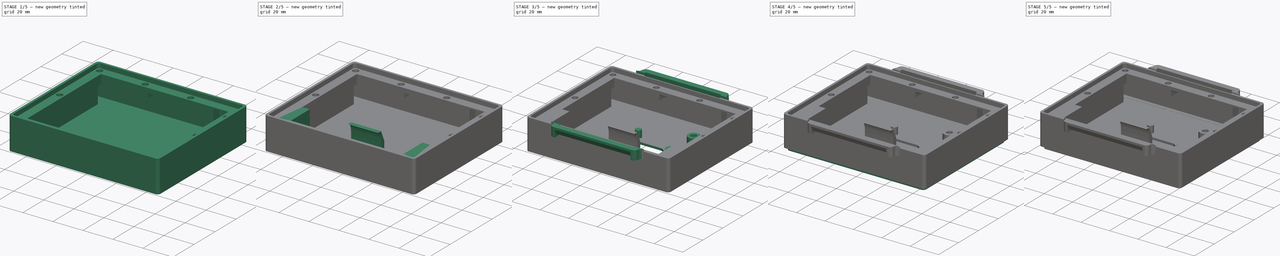
[diagram: build sequence overview — one tinted view per stage of 5, left to right]
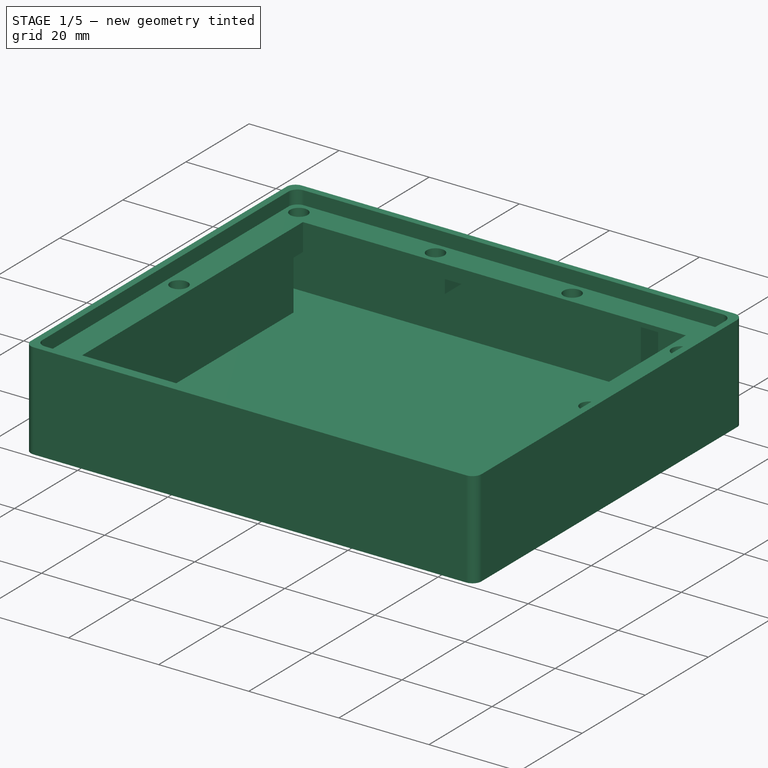
[diagram: stage 1 of 5 — iso view after this stage's code; geometry added in this stage tinted green]
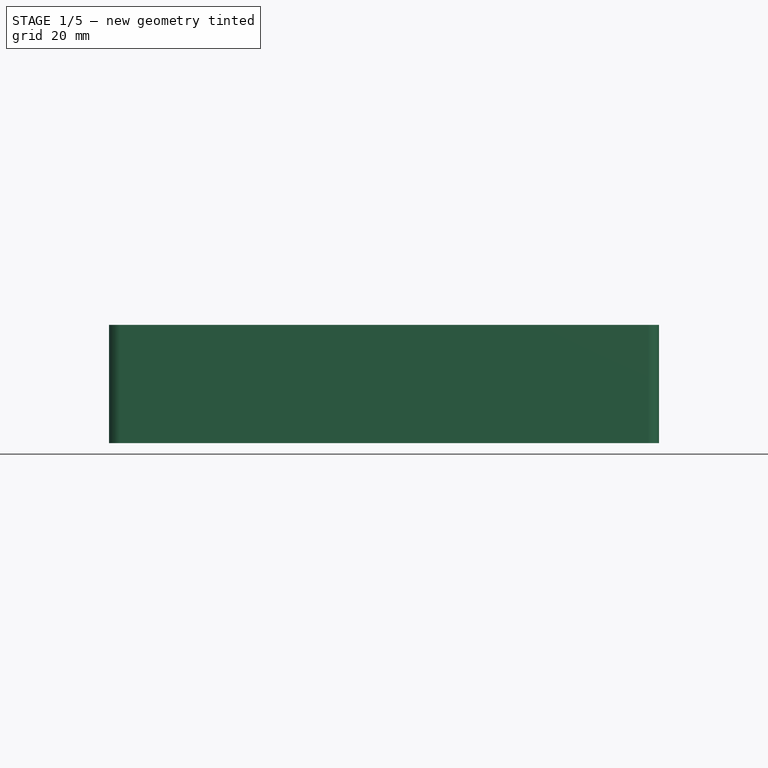
[diagram: stage 1 of 5 — front view after this stage's code; geometry added in this stage tinted green]
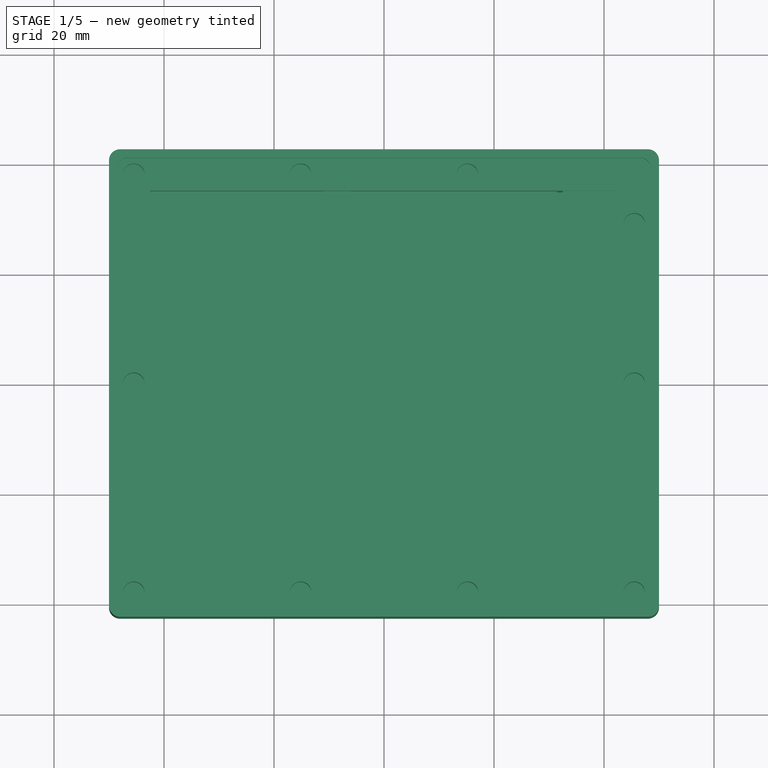
[diagram: stage 1 of 5 — top view after this stage's code; geometry added in this stage tinted green]
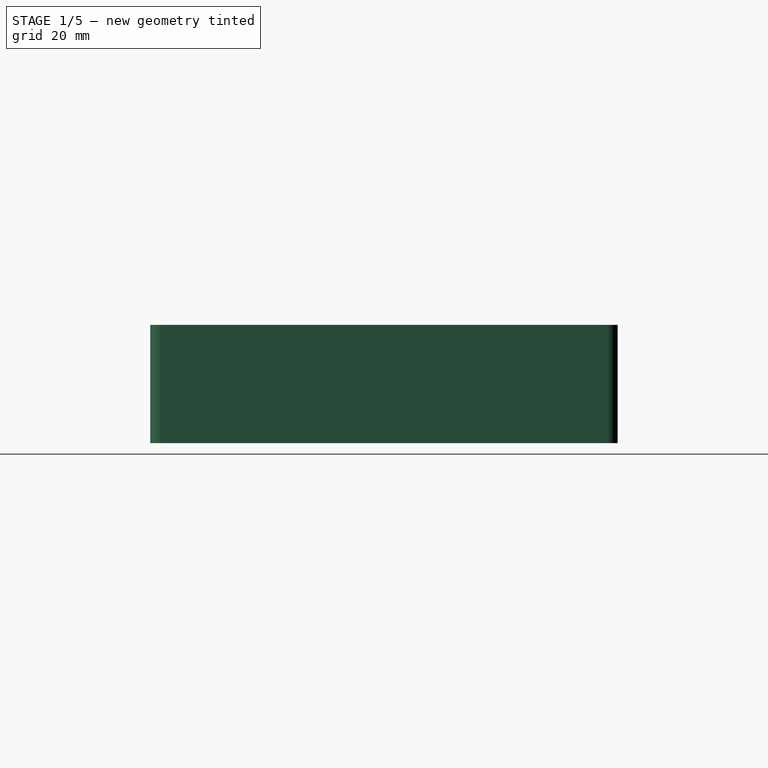
[diagram: stage 1 of 5 — right view after this stage's code; geometry added in this stage tinted green]
FCSTD DOCUMENT  (FreeCAD 1.1R20260325 (Git shallow))
Label: RAKTracker-v12
License: All rights reserved
LicenseURL: https://en.wikipedia.org/wiki/All_rights_reserved
objects: Sketcher::SketchObject×20, PartDesign::Pad×12, PartDesign::Pocket×9, Measure::MeasureLength×6, App::Point×3, Part::DatumPlane×3, PartDesign::Body×3, PartDesign::ShapeBinder×2, PartDesign::Fillet×2, Spreadsheet::Sheet×1, PartDesign::Hole×1, PartDesign::Chamfer×1, Part::Part2DObjectPython×1, App::DocumentObjectGroup×1
note: 121 computed .brp shape members not serialized (recipe doc carries the construction recipe); baked Part::Feature solids carry a one-line shape summary decoded from their .brp

FEATURE [Spreadsheet::Sheet] Spreadsheet  label="sheet"
  cells = A1='What; B1='Measurement; C1='Description; H1='TODO; A2='Box Outer Height; B2(BoxOuterHeight)==21.5 mm; H2='Move GPS to the side and behind a screw? Need to test; A3='Box outer Width; B3(BoxOuterWidth)==85 mm; H3='Put 'TOP' at the top of the box (emboss); A4='Box outer Length; B4(BoxOuterLength)==100 mm; H4='With the strapholder, it would likely be better if the 'tip' of the thing is further away from the box. So the slope close to the box needs to be less steap; A5='Box Corner Radius; B5(BoxCornerRadius)==2 mm; A6='Box Lip Thickness; B6(BoxLipThickness)==1.5 mm; D6==B6 * 2; A7='Box Lip Height; B7(BoxLipHeight)==3 mm; A9='Box Inner Height; B9(BoxInnerHeight)==B2 - 1.5 mm; C9='Measured from the BoxBottom plane downwards. Would be Box Outer Height - the bottom thickness; A10='Box Inner Length; B10(BoxInnerLength)==B4 - 2 * B12; C10='This is the inner space where the PCB and battery are. Calculated based on box Outer and wall thickness; A11='Box Inner Width; B11(BoxInnerWidth)==B3 - 2 * B12; C11='This is the inner space where the PCB and battery are. Calculated based on box Outer and wall thickness; A12='Wall thickness; B12(WallThickness)==7.5 mm; C12='Used for reference; A14='Lid Outer Margin; B14==0.15 mm; C14='How much the lid should be smaller/different from the box. In mm; A15='Lid Inner Margin; B15(LidInnerMargin)==0.1 mm; A25='Seal height; B25(SealBaseHeight)==1 mm; A26='SealMargin; B26(SealMargin)==0.2 mm; A29='Lid Height; B29(LidHeight)==B7 - B25 - B26; A30='Lid Outer Width; B30(LidOuterWidth)==B3 - D6 - 2 * B14; C30='Box Outer with - lip thidckness - margin; A31='Lid Outer Length; B31(LidOuterLength)==B4 - D6 - 2 * B14; A33='Lid inner Width; B33(LidInnerWidth)==B11 - B14 * 2; A34='Lid Inner Length; B34(LidInnerLength)==B10 - B14 * 2; A37='Panel width; B37(PanelWidth)==75 mm; A38='Panel length; B38(PanelLength)==95 mm; A39='Panel height; B39==1.5 mm; A41='AntennaMargin; B41(AntMargin)==1 mm; A42='Small Molex Lora Antenna Width; B42(AntSmallLoraWidth)==10 mm; A43='Small Molex Lora Antenna Length; B43(AntSmallLoraLength)==79 mm; A44='Small Molex Lora Antenna Height; B44(AntSmallLoraHeight)==1.4 mm; A46='Large Molex Lora Antenna Width Sticker; B46(AntLargeLoraWidth)==12.5 mm; A47='Large Molex Lora Antenna Length Sticker; B47(AntLargeLoraLength)==87.5 mm; A48='Large Molex Lora Antenna Width (white); B48='TBD; A49='Large Molex Lora Antenna Length (white); B49==100 mm; A50='Large Molex Lora Antenna Height; B50(AntLargeLoraHeight)==1.6 mm; A53='GPS Antenna Width; B53==15.5 mm; A54='GPS Antenna Height; B54(AntGPSHeight)==7.5 mm; A55='GPS Antenna Length; B55(AntGPSLength)==16 mm; A57='Battery Width; B57(BatteryWidth)==18 mm; A58='Battery Length; B58(BatteryLength)==65 mm; A59='Battery Height; B59(BatteryHeight)==18 mm; A60='Battery Mount Distance; B60(BatteryMountDistance)==75 mm
FEATURE [App::Point] Origin001
  Role = Origin
FEATURE [Sketcher::SketchObject] Sketch  label="BoxBaseSketch"
  ArcFitTolerance = 1e-06
  AttachmentSupport = -> [Origin]
  ExternalTypes = [0]
  FullyConstrained = true
  MakeInternals = false
  MapMode = 5
  _ExternalGeoVersion = 1
  expr: Constraints[19] = <<sheet>>.BoxOuterLength
  expr: Constraints[20] = <<sheet>>.BoxOuterWidth
  expr: Constraints[21] = <<sheet>>.BoxCornerRadius
  sketch-geometry (10):
    g0: LineSegment StartX=50 StartY=-40.5 StartZ=0 EndX=50 EndY=40.5 EndZ=0
    g1: LineSegment StartX=48 StartY=42.5 StartZ=0 EndX=-48 EndY=42.5 EndZ=0
    g2: LineSegment StartX=-50 StartY=40.5 StartZ=0 EndX=-50 EndY=-40.5 EndZ=0
    g3: LineSegment StartX=-48 StartY=-42.5 StartZ=0 EndX=48 EndY=-42.5 EndZ=0
    g4: ArcOfCircle CenterX=48 CenterY=-40.5 CenterZ=0 NormalX=0 NormalY=0 NormalZ=1 AngleXU=0 Radius=2 StartAngle=4.71239 EndAngle=6.28319
    g5: ArcOfCircle CenterX=48 CenterY=40.5 CenterZ=0 NormalX=0 NormalY=0 NormalZ=1 AngleXU=0 Radius=2 StartAngle=1.04e-14 EndAngle=1.5708
    g6: ArcOfCircle CenterX=-48 CenterY=40.5 CenterZ=0 NormalX=0 NormalY=0 NormalZ=1 AngleXU=0 Radius=2 StartAngle=1.5708 EndAngle=3.14159
    g7: ArcOfCircle CenterX=-48 CenterY=-40.5 CenterZ=0 NormalX=0 NormalY=0 NormalZ=1 AngleXU=0 Radius=2 StartAngle=3.14159 EndAngle=4.71239
    g8: GeomPoint [constr] X=-50 Y=42.5 Z=0
    g9: GeomPoint [constr] X=0 Y=0 Z=0
  constraints (22):
    c: Tangent(g0,g4) = -1.5708
    c: Tangent(g0,g5) = -1.5708
    c: Tangent(g1,g5) = -1.5708
    c: Tangent(g1,g6) = -1.5708
    c: Tangent(g2,g6) = -1.5708
    c: Tangent(g2,g7) = -1.5708
    c: Tangent(g3,g7) = -1.5708
    c: Tangent(g3,g4) = -1.5708
    c: Vertical(g0)
    c: Vertical(g2)
    c: Horizontal(g1)
    c: Horizontal(g3)
    c: Equal(g4,g5)
    c: Equal(g5,g6)
    c: Equal(g6,g7)
    c: Symmetric(g2,g0,g9)
    c: PointOnObject(g8,g1)
    c: PointOnObject(g8,g2)
    c: Coincident(g9,g-1)
    c: DistanceX(g2,g0) = 100
    c: DistanceY(g3,g1) = 85
    c: Radius(g5) = 2
FEATURE [PartDesign::Pad] Pad  label="BoxBase"
  Direction = (0,0,1)
  Length = 21.5
  Length2 = 10
  Profile = -> Sketch
  ReferenceAxis = -> Sketch [N_Axis]
  Refine = true
  SideType = 0
  Suppressed = false
  Type = 0
  Type2 = 0
  expr: Length = <<sheet>>.BoxOuterHeight
FEATURE [Part::DatumPlane] DatumPlane  label="BoxBottom"
  AttachmentSupport = -> [Pad]
  MapMode = 5
  Placement = pos=(0,0,21.5) rot=(0,0,1;0rad)
FEATURE [Sketcher::SketchObject] Sketch001  label="BoxLipSketch"
  ArcFitTolerance = 1e-06
  AttachmentSupport = -> [DatumPlane]
  ExternalTypes = [0]
  FullyConstrained = true
  MakeInternals = false
  MapMode = 5
  Placement = pos=(0,0,21.5) rot=(0,0,1;0rad)
  _ExternalGeoVersion = 1
  expr: Constraints[19] = <<sheet>>.BoxOuterWidth - 2 * <<sheet>>.BoxLipThickness
  expr: Constraints[20] = <<sheet>>.BoxOuterLength - 2 * <<sheet>>.BoxLipThickness
  expr: Constraints[21] = <<sheet>>.BoxCornerRadius
  sketch-geometry (10):
    g0: LineSegment StartX=-48.5 StartY=39 StartZ=0 EndX=-48.5 EndY=-39 EndZ=0
    g1: LineSegment StartX=-46.5 StartY=-41 StartZ=0 EndX=46.5 EndY=-41 EndZ=0
    g2: LineSegment StartX=48.5 StartY=-39 StartZ=0 EndX=48.5 EndY=39 EndZ=0
    g3: LineSegment StartX=46.5 StartY=41 StartZ=0 EndX=-46.5 EndY=41 EndZ=0
    g4: ArcOfCircle CenterX=-46.5 CenterY=39 CenterZ=0 NormalX=0 NormalY=0 NormalZ=1 AngleXU=0 Radius=2 StartAngle=1.5708 EndAngle=3.14159
    g5: ArcOfCircle CenterX=-46.5 CenterY=-39 CenterZ=0 NormalX=0 NormalY=0 NormalZ=1 AngleXU=0 Radius=2 StartAngle=3.14159 EndAngle=4.71239
    g6: ArcOfCircle CenterX=46.5 CenterY=-39 CenterZ=0 NormalX=0 NormalY=0 NormalZ=1 AngleXU=0 Radius=2 StartAngle=4.71239 EndAngle=6.28319
    g7: ArcOfCircle CenterX=46.5 CenterY=39 CenterZ=0 NormalX=0 NormalY=0 NormalZ=1 AngleXU=0 Radius=2 StartAngle=1.2e-14 EndAngle=1.5708
    g8: GeomPoint [constr] X=48.5 Y=-41 Z=0
    g9: GeomPoint [constr] X=0 Y=0 Z=0
  constraints (22):
    c: Tangent(g0,g4) = -1.5708
    c: Tangent(g0,g5) = -1.5708
    c: Tangent(g1,g5) = -1.5708
    c: Tangent(g1,g6) = -1.5708
    c: Tangent(g2,g6) = -1.5708
    c: Tangent(g2,g7) = -1.5708
    c: Tangent(g3,g7) = -1.5708
    c: Tangent(g3,g4) = -1.5708
    c: Vertical(g0)
    c: Vertical(g2)
    c: Horizontal(g1)
    c: Horizontal(g3)
    c: Equal(g4,g5)
    c: Equal(g5,g6)
    c: Equal(g6,g7)
    c: Symmetric(g2,g0,g9)
    c: PointOnObject(g8,g1)
    c: PointOnObject(g8,g2)
    c: Coincident(g9,g-1)
    c: DistanceY(g1,g3) = 82
    c: DistanceX(g0,g2) = 97
    c: Radius(g7) = 2
FEATURE [PartDesign::Pocket] Pocket  label="BoxLip"
  BaseFeature = -> Pad
  Direction = (0,0,-1)
  Length = 3
  Length2 = 5
  Profile = -> Sketch001
  ReferenceAxis = -> Sketch001 [N_Axis]
  Refine = true
  SideType = 0
  Suppressed = false
  Type = 0
  Type2 = 0
  expr: Length = <<sheet>>.BoxLipHeight
FEATURE [Sketcher::SketchObject] Sketch002
  ArcFitTolerance = 1e-06
  AttachmentSupport = -> [DatumPlane]
  ExternalTypes = [0]
  FullyConstrained = true
  MakeInternals = false
  MapMode = 5
  Placement = pos=(0,0,21.5) rot=(0,0,1;0rad)
  _ExternalGeoVersion = 1
  expr: Constraints[5] = <<sheet>>.BoxInnerWidth
  expr: Constraints[6] = <<sheet>>.BoxInnerLength
  sketch-geometry (4):
    g0: LineSegment StartX=-42.5 StartY=35 StartZ=0 EndX=-42.5 EndY=-35 EndZ=0
    g1: LineSegment StartX=-42.5 StartY=-35 StartZ=0 EndX=42.5 EndY=-35 EndZ=0
    g2: LineSegment StartX=42.5 StartY=-35 StartZ=0 EndX=42.5 EndY=35 EndZ=0
    g3: LineSegment StartX=42.5 StartY=35 StartZ=0 EndX=-42.5 EndY=35 EndZ=0
  constraints (11):
    c: Vertical(g0)
    c: Vertical(g2)
    c: Horizontal(g1)
    c: Horizontal(g3)
    c: Symmetric(g2,g0,g-1)
    c: DistanceY(g1,g3) = 70
    c: DistanceX(g0,g2) = 85
    c: Coincident(g3,g2)
    c: Coincident(g0,g3)
    c: Coincident(g1,g2)
    c: Coincident(g0,g1)
FEATURE [PartDesign::Pocket] Pocket001  label="BoxWall"
  BaseFeature = -> Pocket
  Direction = (0,0,-1)
  Length = 20
  Length2 = 5
  Profile = -> Sketch002
  ReferenceAxis = -> Sketch002 [N_Axis]
  Refine = true
  SideType = 0
  Suppressed = false
  Type = 0
  Type2 = 0
  expr: Length = <<sheet>>.BoxInnerHeight
FEATURE [Sketcher::SketchObject] Sketch004  label="StrapHolderSketch"
  ArcFitTolerance = 1e-06
  AttachmentSupport = -> [Origin]
  ExternalTypes = [0]
  FullyConstrained = true
  MakeInternals = false
  MapMode = 5
  Placement = pos=(0,0,0) rot=(0.57735,0.57735,0.57735;2.0944rad)
  _ExternalGeoVersion = 1
  expr: Constraints[13] = <<StrapMainbody>>.Length
  expr: Constraints[19] = .Constraints.Width / 2
  expr: Constraints[21] = .Constraints.radius / 3
  expr: Constraints[39] = .Constraints.Width / 2
  expr: Constraints[48] = <<StrapMainbody>>.Length2
  expr: Constraints[53] = .Constraints.StrapOutsideSize
  expr: Constraints[6] = <<sheet>>.BoxOuterWidth
  expr: Constraints[8] = <<sheet>>.BoxOuterHeight
  sketch-geometry (18):
    g0: LineSegment [constr] StartX=-42.5 StartY=0 StartZ=0 EndX=42.5 EndY=0 EndZ=0
    g1: LineSegment [constr] StartX=42.5 StartY=0 StartZ=0 EndX=42.5 EndY=21.5 EndZ=0
    g2: LineSegment [constr] StartX=42.5 StartY=21.5 StartZ=0 EndX=-42.5 EndY=21.5 EndZ=0
    g3: LineSegment [constr] StartX=-42.5 StartY=21.5 StartZ=0 EndX=-42.5 EndY=0 EndZ=0
    g4: LineSegment StartX=42.5 StartY=16.5 StartZ=0 EndX=47.5 EndY=16.5 EndZ=0
    g5: LineSegment StartX=47.5 StartY=16.5 StartZ=0 EndX=47.5 EndY=21.5 EndZ=0
    g6: ArcOfCircle CenterX=45 CenterY=19 CenterZ=0 NormalX=0 NormalY=0 NormalZ=1 AngleXU=0 Radius=1 StartAngle=3.48143 EndAngle=5.94335
    g7: LineSegment StartX=45.9428 StartY=18.6667 StartZ=0 EndX=47.5 EndY=21.5 EndZ=0
    g8: LineSegment StartX=43.5 StartY=23 StartZ=0 EndX=44.0572 EndY=18.6667 EndZ=0
    g9: LineSegment StartX=42.5 StartY=16.5 StartZ=0 EndX=41.5 EndY=23 EndZ=0
    g10: LineSegment StartX=-41.5 StartY=23 StartZ=0 EndX=-42.5 EndY=16.5 EndZ=0
    g11: LineSegment StartX=-42.5 StartY=16.5 StartZ=0 EndX=-47.5 EndY=16.5 EndZ=0
    g12: LineSegment StartX=-47.5 StartY=16.5 StartZ=0 EndX=-47.5 EndY=21.5 EndZ=0
    g13: LineSegment StartX=-47.5 StartY=21.5 StartZ=0 EndX=-45.9428 EndY=18.6667 EndZ=0
    g14: LineSegment StartX=-43.5 StartY=23 StartZ=0 EndX=-44.0572 EndY=18.6667 EndZ=0
    g15: ArcOfCircle CenterX=-45 CenterY=19 CenterZ=0 NormalX=0 NormalY=0 NormalZ=1 AngleXU=0 Radius=1 StartAngle=3.48143 EndAngle=5.94335
    g16: LineSegment StartX=41.5 StartY=23 StartZ=0 EndX=43.5 EndY=23 EndZ=0
    g17: LineSegment StartX=-43.5 StartY=23 StartZ=0 EndX=-41.5 EndY=23 EndZ=0
  constraints (55):
    c: Coincident(g0,g1)
    c: Coincident(g3,g0)
    c: Horizontal(g0)
    c: Vertical(g1)
    c: Vertical(g3)
    c: PointOnObject(g0,g-1)
    c: DistanceX(g2,g1) = 85
    c: Symmetric(g1,g2,g-2)
    c: DistanceY(g0,g1) = 21.5
    c: Horizontal(g7,g1)
    c: Horizontal(g4)
    c: Coincident(g5,g4)
    c: Vertical(g5)
    c: DistanceY(g5,g5) = 5
    c: Coincident(g7,g6)
    c: DistanceX(g4,g4) = 5  'Width'
    c: Coincident(g7,g5)
    c: DistanceY(g6,g5) = 2.5
    c: Horizontal(g6,g6)
    c: DistanceX(g6,g4) = 2.5
    c: Radius(g6) = 1  'radius'
    c: DistanceY(g6,g6) = 0.333333
    c: Coincident(g8,g6)
    c: Coincident(g9,g4)
    c: PointOnObject(g4,g1)
    c: PointOnObject(g10,g3)
    c: Coincident(g12,g11)
    c: Coincident(g13,g12)
    c: Coincident(g15,g13)
    c: Coincident(g15,g14)
    c: Coincident(g11,g10)
    c: Horizontal(g11)
    c: Vertical(g12)
    c: Horizontal(g4,g10)
    c: Equal(g4,g11)
    c: Horizontal(g2,g12)
    c: Horizontal(g6,g15)
    c: Horizontal(g13,g14)
    c: Horizontal(g14,g6)
    c: DistanceX(g15,g2) = 2.5
    c: Equal(g15,g6)
    c: DistanceX(g9,g1) = 1
    c: Coincident(g1,g2)
    c: DistanceX(g1,g8) = 1  'StrapOutsideSize'
    c: Coincident(g2,g3)
    c: Coincident(g16,g9)
    c: Coincident(g16,g8)
    c: Horizontal(g16)
    c: DistanceY(g1,g8) = 1.5
    c: Coincident(g17,g14)
    c: Coincident(g17,g10)
    c: Horizontal(g17)
    c: Horizontal(g10,g9)
    c: DistanceX(g14,g2) = 1
    c: Equal(g16,g17)
FEATURE [Sketcher::SketchObject] Sketch007  label="ScrewHolesSketch"
  ArcFitTolerance = 1e-06
  AttachmentSupport = -> [DatumPlane]
  ExternalTypes = [0]
  FullyConstrained = true
  MakeInternals = false
  MapMode = 5
  Placement = pos=(0,0,21.5) rot=(0,0,1;0rad)
  _ExternalGeoVersion = 1
  expr: Constraints[18] = <<sheet>>.BoxOuterWidth - 2 * <<sheet>>.BoxLipThickness
  expr: Constraints[19] = <<sheet>>.BoxOuterLength - 2 * <<sheet>>.BoxLipThickness
  expr: Constraints[31] = <<sheet>>.BoxInnerWidth
  expr: Constraints[32] = <<sheet>>.BoxInnerLength
  expr: Constraints[41] = <<sheet>>.BoxCornerRadius
  expr: Constraints[82] = 91 / 3
  expr: Constraints[83] = 91 / 3
  sketch-geometry (33):
    g0: LineSegment [constr] StartX=48.5 StartY=-39 StartZ=0 EndX=48.5 EndY=39 EndZ=0
    g1: LineSegment [constr] StartX=46.5 StartY=41 StartZ=0 EndX=-46.5 EndY=41 EndZ=0
    g2: LineSegment [constr] StartX=-48.5 StartY=39 StartZ=0 EndX=-48.5 EndY=-39 EndZ=0
    g3: LineSegment [constr] StartX=-46.5 StartY=-41 StartZ=0 EndX=46.5 EndY=-41 EndZ=0
    g4: ArcOfCircle [constr] CenterX=46.5 CenterY=-39 CenterZ=0 NormalX=0 NormalY=0 NormalZ=1 AngleXU=0 Radius=2 StartAngle=4.71239 EndAngle=6.28319
    g5: ArcOfCircle [constr] CenterX=46.5 CenterY=39 CenterZ=0 NormalX=0 NormalY=0 NormalZ=1 AngleXU=0 Radius=2 StartAngle=3e-16 EndAngle=1.5708
    g6: ArcOfCircle [constr] CenterX=-46.5 CenterY=39 CenterZ=0 NormalX=0 NormalY=0 NormalZ=1 AngleXU=0 Radius=2 StartAngle=1.5708 EndAngle=3.14159
    g7: ArcOfCircle [constr] CenterX=-46.5 CenterY=-39 CenterZ=0 NormalX=0 NormalY=0 NormalZ=1 AngleXU=0 Radius=2 StartAngle=3.14159 EndAngle=4.71239
    g8: GeomPoint [constr] X=-48.5 Y=41 Z=0
    g9: GeomPoint [constr] X=0 Y=0 Z=0
    g10: LineSegment [constr] StartX=-42.5 StartY=35 StartZ=0 EndX=-42.5 EndY=-35 EndZ=0
    g11: LineSegment [constr] StartX=-42.5 StartY=-35 StartZ=0 EndX=42.5 EndY=-35 EndZ=0
    g12: LineSegment [constr] StartX=42.5 StartY=-35 StartZ=0 EndX=42.5 EndY=35 EndZ=0
    g13: LineSegment [constr] StartX=42.5 StartY=35 StartZ=0 EndX=-42.5 EndY=35 EndZ=0
    g14: GeomPoint [constr] X=0 Y=0 Z=0
    g15: Circle CenterX=45.5 CenterY=0 CenterZ=0 NormalX=0 NormalY=0 NormalZ=1 AngleXU=0 Radius=1.95
    g16: Circle CenterX=-45.5 CenterY=0 CenterZ=0 NormalX=0 NormalY=0 NormalZ=1 AngleXU=0 Radius=1.95
    g17: Circle CenterX=-15.1667 CenterY=-38 CenterZ=0 NormalX=0 NormalY=0 NormalZ=1 AngleXU=0 Radius=1.95
    g18: Circle CenterX=-45.5 CenterY=-38 CenterZ=0 NormalX=0 NormalY=0 NormalZ=1 AngleXU=0 Radius=1.95
    g19: Circle CenterX=45.5 CenterY=-38 CenterZ=0 NormalX=0 NormalY=0 NormalZ=1 AngleXU=0 Radius=1.95
    g20: Circle CenterX=15.1667 CenterY=38 CenterZ=0 NormalX=0 NormalY=0 NormalZ=1 AngleXU=0 Radius=1.95
    g21: Circle CenterX=-15.1667 CenterY=38 CenterZ=0 NormalX=0 NormalY=0 NormalZ=1 AngleXU=0 Radius=1.95
    g22: Circle CenterX=-45.5 CenterY=38 CenterZ=0 NormalX=0 NormalY=0 NormalZ=1 AngleXU=0 Radius=1.95
    g23: Circle CenterX=45.5 CenterY=29 CenterZ=0 NormalX=0 NormalY=0 NormalZ=1 AngleXU=0 Radius=1.95
    g24: Circle CenterX=15.1667 CenterY=-38 CenterZ=0 NormalX=0 NormalY=0 NormalZ=1 AngleXU=0 Radius=1.95
    g25: LineSegment [constr] StartX=-45.5 StartY=38 StartZ=0 EndX=-45.5 EndY=35 EndZ=0
    g26: LineSegment [constr] StartX=-45.5 StartY=35 StartZ=0 EndX=-42.5 EndY=35 EndZ=0
    g27: LineSegment [constr] StartX=-42.5 StartY=35 StartZ=0 EndX=-42.5 EndY=38 EndZ=0
    g28: LineSegment [constr] StartX=-42.5 StartY=38 StartZ=0 EndX=-45.5 EndY=38 EndZ=0
    g29: LineSegment [constr] StartX=42.5 StartY=-35 StartZ=0 EndX=42.5 EndY=-38 EndZ=0
    g30: LineSegment [constr] StartX=42.5 StartY=-38 StartZ=0 EndX=45.5 EndY=-38 EndZ=0
    g31: LineSegment [constr] StartX=45.5 StartY=-38 StartZ=0 EndX=45.5 EndY=-35 EndZ=0
    g32: LineSegment [constr] StartX=45.5 StartY=-35 StartZ=0 EndX=42.5 EndY=-35 EndZ=0
  constraints (84):
    c: Tangent(g0,g4) = -1.5708
    c: Tangent(g0,g5) = -1.5708
    c: Tangent(g1,g5) = -1.5708
    c: Tangent(g1,g6) = -1.5708
    c: Tangent(g2,g6) = -1.5708
    c: Tangent(g2,g7) = -1.5708
    c: Tangent(g3,g7) = -1.5708
    c: Tangent(g3,g4) = -1.5708
    c: Vertical(g0)
    c: Vertical(g2)
    c: Horizontal(g1)
    c: Horizontal(g3)
    c: Equal(g4,g5)
    c: Equal(g5,g6)
    c: Equal(g6,g7)
    c: Symmetric(g2,g0,g9)
    c: PointOnObject(g8,g1)
    c: PointOnObject(g8,g2)
    c: DistanceY(g3,g1) = 82
    c: DistanceX(g2,g0) = 97
    c: Coincident(g9,g-1)
    c: Coincident(g10,g11)
    c: Coincident(g11,g12)
    c: Coincident(g12,g13)
    c: Coincident(g13,g10)
    c: Vertical(g10)
    c: Vertical(g12)
    c: Horizontal(g11)
    c: Horizontal(g13)
    c: Symmetric(g12,g10,g14)
    c: Coincident(g14,g9)
    c: DistanceY(g11,g12) = 70
    c: DistanceX(g10,g12) = 85
    c: PointOnObject(g15,g-1)
    c: PointOnObject(g16,g-1)
    c: Horizontal(g21,g22)
    c: Vertical(g15,g19)
    c: Horizontal(g19,g17)
    c: Horizontal(g17,g18)
    c: Vertical(g22,g16)
    c: Vertical(g16,g18)
    c: Radius(g7) = 2
    c: Diameter(g21) = 3.9
    c: Equal(g15,g16)
    c: Equal(g16,g17)
    c: Equal(g17,g18)
    c: Equal(g18,g19)
    c: Equal(g19,g20)
    c: Equal(g20,g21)
    c: Equal(g21,g22)
    c: Equal(g21,g23)
    c: Vertical(g23,g15)
    c: Horizontal(g21,g20)
    c: DistanceY(g23,g1) = 12
    c: Horizontal(g17,g24)
    c: Equal(g21,g24)
    c: Vertical(g20,g24)
    c: Vertical(g21,g17)
    c: Coincident(g25,g26)
    c: Coincident(g26,g27)
    c: Coincident(g27,g28)
    c: Coincident(g28,g25)
    c: Vertical(g25)
    c: Vertical(g27)
    c: Horizontal(g26)
    c: Horizontal(g28)
    c: Coincident(g25,g22)
    c: Coincident(g26,g10)
    c: Equal(g28,g25)
    c: Coincident(g29,g30)
    c: Coincident(g30,g31)
    c: Coincident(g31,g32)
    c: Coincident(g32,g29)
    c: Vertical(g29)
    c: Vertical(g31)
    c: Horizontal(g30)
    c: Horizontal(g32)
    c: Coincident(g29,g11)
    c: Coincident(g30,g19)
    c: Equal(g31,g30)
    c: Equal(g25,g29)
    c: DistanceX(g16,g15) = 91  'HoleTotalWidth'
    c: DistanceX(g18,g17) = 30.3333
    c: DistanceX(g17,g24) = 30.3333
FEATURE [PartDesign::Pocket] Pocket003  label="ScrewHoles"
  BaseFeature = -> Pocket001
  Direction = (0,0,-1)
  Length = 10
  Length2 = 5
  Profile = -> Sketch007
  ReferenceAxis = -> Sketch007 [N_Axis]
  Refine = true
  SideType = 0
  Suppressed = false
  Type = 0
  Type2 = 0
FEATURE [Part::DatumPlane] DatumPlane001  label="AntennaSide"
  AttachmentSupport = -> [Pocket003]
  MapMode = 5
  Placement = pos=(0,35,0) rot=(1,0,0;1.5708rad)
FEATURE [Sketcher::SketchObject] Sketch008  label="AntennaGapSketch"
  ArcFitTolerance = 1e-06
  AttachmentSupport = -> [DatumPlane001]
  ExternalTypes = [0]
  FullyConstrained = true
  MakeInternals = false
  MapMode = 5
  Placement = pos=(0,35,0) rot=(1,0,0;1.5708rad)
  _ExternalGeoVersion = 1
  expr: Constraints[14] = <<sheet>>.AntGPSLength
  expr: Constraints[15] = <<sheet>>.AntSmallLoraLength + <<sheet>>.AntMargin
  expr: Constraints[16] = <<sheet>>.AntSmallLoraWidth + <<sheet>>.AntMargin
  expr: Constraints[25] = <<sheet>>.BoxOuterLength
  expr: Constraints[27] = <<sheet>>.BoxOuterHeight - <<sheet>>.BoxInnerHeight
  expr: Constraints[29] = <<sheet>>.BoxOuterHeight
  sketch-geometry (16):
    g0: LineSegment StartX=-48.5 StartY=12.5 StartZ=0 EndX=-48.5 EndY=1.5 EndZ=0
    g1: LineSegment StartX=-48.5 StartY=1.5 StartZ=0 EndX=31.5 EndY=1.5 EndZ=0
    g2: LineSegment StartX=31.5 StartY=1.5 StartZ=0 EndX=31.5 EndY=12.5 EndZ=0
    g3: LineSegment StartX=32.5 StartY=17.5 StartZ=0 EndX=32.5 EndY=1.5 EndZ=0
    g4: LineSegment StartX=32.5 StartY=1.5 StartZ=0 EndX=48.5 EndY=1.5 EndZ=0
    g5: LineSegment StartX=48.5 StartY=1.5 StartZ=0 EndX=48.5 EndY=17.5 EndZ=0
    g6: LineSegment StartX=48.5 StartY=17.5 StartZ=0 EndX=32.5 EndY=17.5 EndZ=0
    g7: LineSegment [constr] StartX=-50 StartY=21.5 StartZ=0 EndX=-50 EndY=0 EndZ=0
    g8: LineSegment [constr] StartX=-50 StartY=0 StartZ=0 EndX=50 EndY=0 EndZ=0
    g9: LineSegment [constr] StartX=50 StartY=0 StartZ=0 EndX=50 EndY=21.5 EndZ=0
    g10: LineSegment [constr] StartX=50 StartY=21.5 StartZ=0 EndX=-50 EndY=21.5 EndZ=0
    g11: LineSegment StartX=-48.5 StartY=12.5 StartZ=0 EndX=-11 EndY=12.5 EndZ=0
    g12: LineSegment StartX=31.5 StartY=12.5 StartZ=0 EndX=-6 EndY=12.5 EndZ=0
    g13: LineSegment StartX=-11 StartY=12.5 StartZ=0 EndX=-11 EndY=15.5 EndZ=0
    g14: LineSegment StartX=-11 StartY=15.5 StartZ=0 EndX=-6 EndY=15.5 EndZ=0
    g15: LineSegment StartX=-6 StartY=15.5 StartZ=0 EndX=-6 EndY=12.5 EndZ=0
  constraints (46):
    c: Coincident(g0,g1)
    c: Coincident(g1,g2)
    c: Vertical(g0)
    c: Vertical(g2)
    c: Horizontal(g1)
    c: Coincident(g3,g4)
    c: Coincident(g4,g5)
    c: Coincident(g5,g6)
    c: Coincident(g6,g3)
    c: Vertical(g3)
    c: Vertical(g5)
    c: Horizontal(g4)
    c: Horizontal(g6)
    c: Equal(g6,g5)
    c: DistanceY(g5,g5) = 16
    c: DistanceX(g0,g2) = 80
    c: DistanceY(g0,g0) = 11
    c: Coincident(g7,g8)
    c: Coincident(g8,g9)
    c: Coincident(g9,g10)
    c: Coincident(g10,g7)
    c: Vertical(g7)
    c: Vertical(g9)
    c: Horizontal(g10)
    c: PointOnObject(g8,g-1)
    c: DistanceX(g10,g10) = 100
    c: DistanceX(g1,g3) = 1
    c: DistanceY(g8,g4) = 1.5
    c: Symmetric(g4,g0,g-2)
    c: DistanceY(g8,g9) = 21.5
    c: Symmetric(g8,g7,g-2)
    c: Coincident(g11,g0)
    c: Horizontal(g11)
    c: Coincident(g12,g2)
    c: Horizontal(g12)
    c: Coincident(g13,g11)
    c: Vertical(g13)
    c: Coincident(g14,g13)
    c: Horizontal(g14)
    c: Coincident(g15,g14)
    c: Coincident(g15,g12)
    c: Vertical(g15)
    c: DistanceX(g14,g14) = 5
    c: Equal(g12,g11)
    c: Horizontal(g12,g11)
    c: DistanceY(g15,g15) = 3
FEATURE [PartDesign::Pocket] Pocket004  label="AntennaGap"
  BaseFeature = -> Pocket003
  Direction = (0,1,-2e-16)
  Length = 5.5
  Length2 = 3
  Profile = -> Sketch008
  ReferenceAxis = -> Sketch008 [N_Axis]
  Refine = true
  SideType = 1
  Suppressed = false
  Type = 0
  Type2 = 0
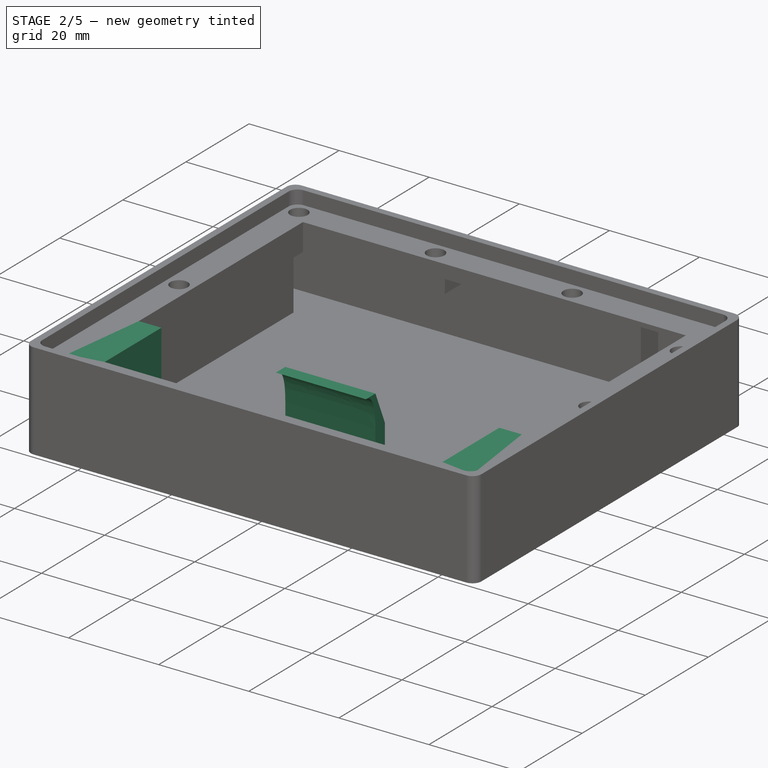
[diagram: stage 2 of 5 — iso view after this stage's code; geometry added in this stage tinted green]
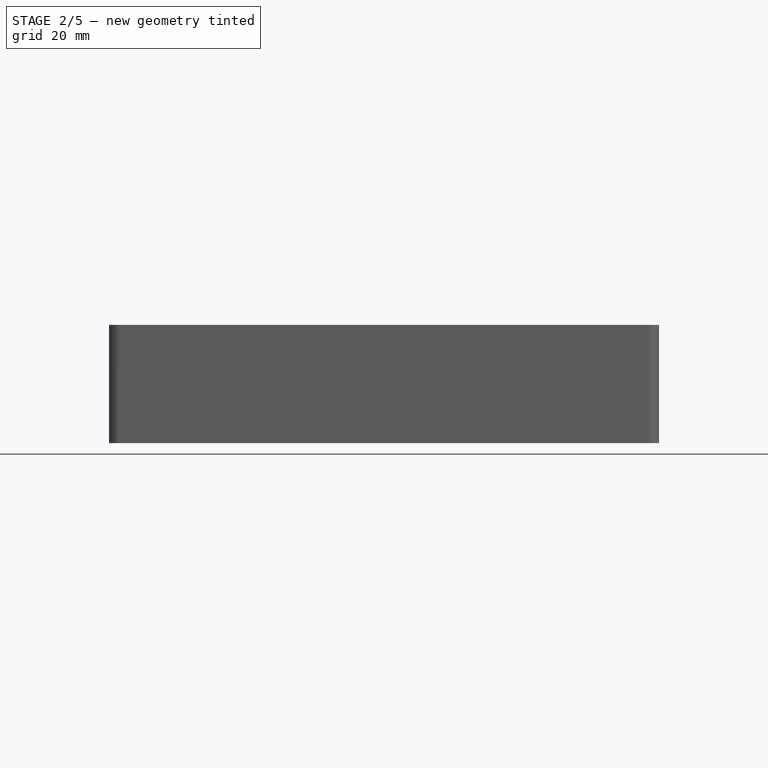
[diagram: stage 2 of 5 — front view after this stage's code; geometry added in this stage tinted green]
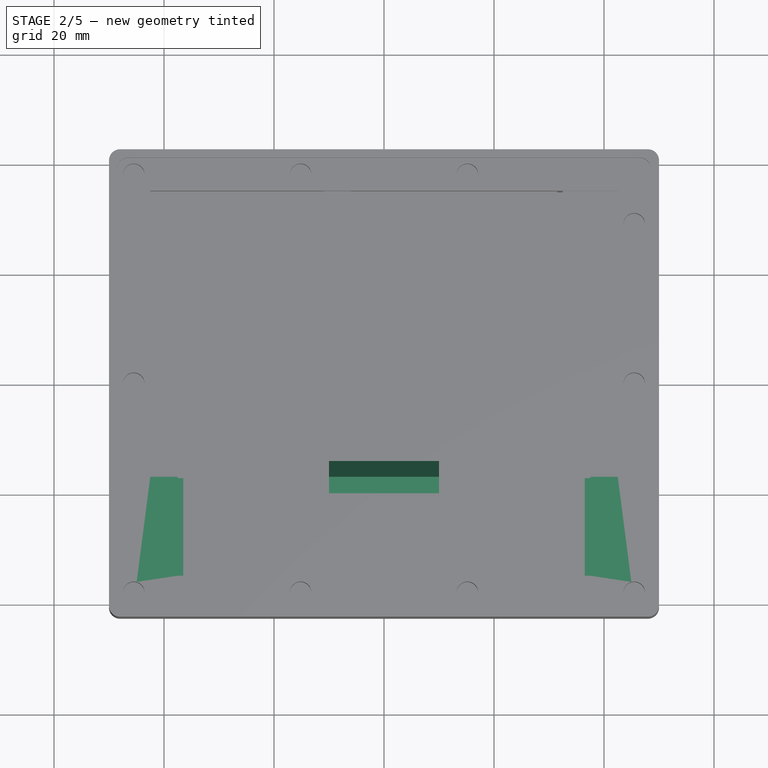
[diagram: stage 2 of 5 — top view after this stage's code; geometry added in this stage tinted green]
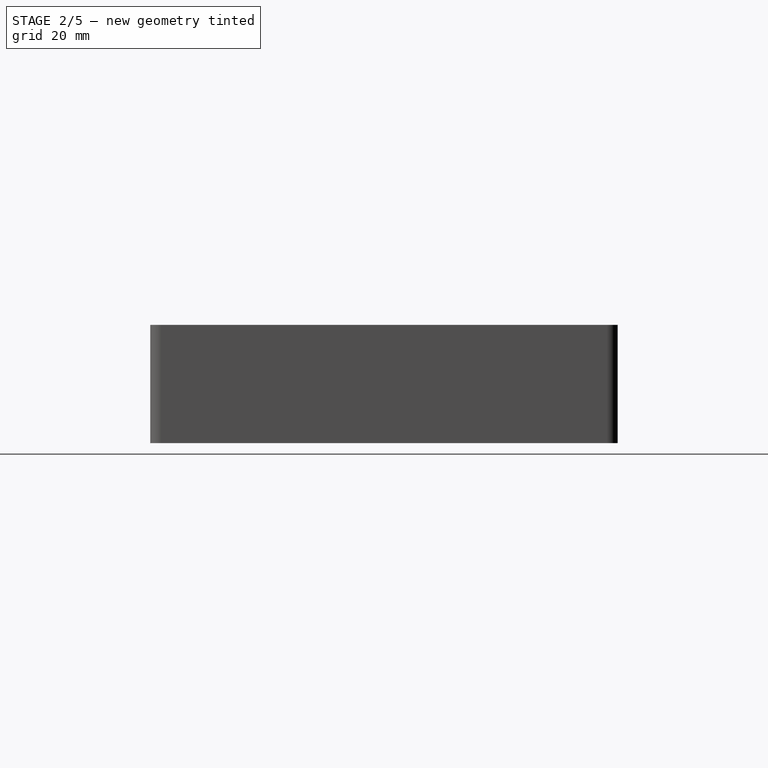
[diagram: stage 2 of 5 — right view after this stage's code; geometry added in this stage tinted green]
FEATURE [Sketcher::SketchObject] Sketch015  label="StrapMainbodySketch"
  ArcFitTolerance = 1e-06
  AttachmentSupport = -> [DatumPlane]
  ExternalGeometry = -> [Sketch]
  ExternalTypes = [0,0]
  FullyConstrained = true
  MakeInternals = false
  MapMode = 5
  Placement = pos=(0,0,21.5) rot=(0,0,1;0rad)
  _ExternalGeoVersion = 1
  expr: Constraints[17] = .Constraints.StrapWidth / 2
  expr: Constraints[34] = .Constraints.StrapWidth
  expr: Constraints[40] = .Constraints.StrapWidth / 2
  sketch-geometry (12):
    g0: LineSegment StartX=-27.5 StartY=47.5 StartZ=0 EndX=27.5 EndY=47.5 EndZ=0
    g1: LineSegment StartX=32.5 StartY=42.5 StartZ=0 EndX=-32.5 EndY=42.5 EndZ=0
    g2: ArcOfCircle CenterX=-32.5 CenterY=45 CenterZ=0 NormalX=0 NormalY=0 NormalZ=1 AngleXU=0 Radius=2.5 StartAngle=4.71239 EndAngle=6.28319
    g3: ArcOfCircle CenterX=-27.5 CenterY=45 CenterZ=0 NormalX=0 NormalY=0 NormalZ=1 AngleXU=0 Radius=2.5 StartAngle=1.5708 EndAngle=3.14159
    g4: ArcOfCircle CenterX=27.5 CenterY=45 CenterZ=0 NormalX=0 NormalY=0 NormalZ=1 AngleXU=0 Radius=2.5 StartAngle=0 EndAngle=1.5708
    g5: ArcOfCircle CenterX=32.5 CenterY=45 CenterZ=0 NormalX=0 NormalY=0 NormalZ=1 AngleXU=0 Radius=2.5 StartAngle=3.14159 EndAngle=4.71239
    g6: LineSegment StartX=-32.5 StartY=-42.5 StartZ=0 EndX=32.5 EndY=-42.5 EndZ=0
    g7: LineSegment StartX=-27.5 StartY=-47.5 StartZ=0 EndX=27.5 EndY=-47.5 EndZ=0
    g8: ArcOfCircle CenterX=-32.5 CenterY=-45 CenterZ=0 NormalX=0 NormalY=0 NormalZ=1 AngleXU=0 Radius=2.5 StartAngle=2e-16 EndAngle=1.5708
    g9: ArcOfCircle CenterX=-27.5 CenterY=-45 CenterZ=0 NormalX=0 NormalY=0 NormalZ=1 AngleXU=0 Radius=2.5 StartAngle=3.14159 EndAngle=4.71239
    g10: ArcOfCircle CenterX=32.5 CenterY=-45 CenterZ=0 NormalX=0 NormalY=0 NormalZ=1 AngleXU=0 Radius=2.5 StartAngle=1.5708 EndAngle=3.14159
    g11: ArcOfCircle CenterX=27.5 CenterY=-45 CenterZ=0 NormalX=0 NormalY=0 NormalZ=1 AngleXU=0 Radius=2.5 StartAngle=4.71239 EndAngle=6.28319
  constraints (43):
    c: Horizontal(g1)
    c: Coincident(g3,g2)
    c: Coincident(g5,g4)
    c: Coincident(g5,g1)
    c: Coincident(g1,g2)
    c: Coincident(g3,g0)
    c: Coincident(g0,g4)
    c: Vertical(g0,g4)
    c: Vertical(g3,g0)
    c: Horizontal(g2,g3)
    c: Horizontal(g4,g4)
    c: Horizontal(g5,g4)
    c: PointOnObject(g1,g-3)
    c: Horizontal(g2,g2)
    c: Vertical(g1,g2)
    c: Vertical(g5,g1)
    c: DistanceY(g1,g0) = 5  'StrapWidth'
    c: DistanceY(g3,g0) = 2.5
    c: Horizontal(g4,g2)
    c: DistanceX(g3,g4) = 55
    c: Symmetric(g0,g0,g-2)
    c: PointOnObject(g6,g-4)
    c: PointOnObject(g6,g-4)
    c: Horizontal(g7)
    c: Coincident(g8,g6)
    c: Coincident(g9,g8)
    c: Coincident(g9,g7)
    c: Coincident(g10,g6)
    c: Coincident(g11,g10)
    c: Coincident(g11,g7)
    c: Vertical(g1,g6)
    c: Vertical(g1,g6)
    c: Vertical(g8,g6)
    c: Horizontal(g8,g8)
    c: DistanceY(g7,g6) = 5
    c: Vertical(g0,g7)
    c: Horizontal(g10,g10)
    c: Horizontal(g10,g11)
    c: Horizontal(g11,g9)
    c: Horizontal(g9,g8)
    c: DistanceY(g10,g6) = 2.5
    c: Vertical(g9,g7)
    c: Vertical(g10,g6)
FEATURE [PartDesign::Chamfer] Chamfer  label="AntennaGPSCamfer"
  Angle = 45
  Base = -> Pocket004 [Edge95]
  BaseFeature = -> Pocket004
  ChamferType = 0
  FlipDirection = false
  Refine = true
  Size = 2
  Size2 = 1
  SupportTransform = false
  Suppressed = false
  UseAllEdges = false
FEATURE [PartDesign::Pad] Pad004  label="BatHolderClip"
  BaseFeature = -> Chamfer
  Direction = (1,0,0)
  Length = 20
  Length2 = 10
  Profile = -> Sketch010
  ReferenceAxis = -> Sketch010 [N_Axis]
  Refine = true
  SideType = 2
  Suppressed = false
  Type = 0
  Type2 = 0
FEATURE [PartDesign::Pad] Pad005  label="BatHolderMount"
  BaseFeature = -> Pad004
  Direction = (0,0,1)
  Length = 18.5
  Length2 = 10
  Profile = -> Sketch012
  ReferenceAxis = -> Sketch012 [N_Axis]
  Refine = true
  SideType = 0
  Suppressed = false
  Type = 0
  Type2 = 0
  expr: Length = <<sheet>>.BoxOuterHeight - <<sheet>>.BoxLipHeight
FEATURE [PartDesign::Pad] Pad006  label="BatHolderClipguide1"
  BaseFeature = -> Pad005
  Direction = (1,0,0)
  Length = 36.5
  Length2 = -37.5
  Profile = -> Sketch011
  ReferenceAxis = -> Sketch011 [N_Axis]
  Refine = true
  SideType = 1
  Suppressed = false
  Type = 0
  Type2 = 0
  expr: Length = <<sheet>>.BatteryMountDistance / 2 - 1 mm
  expr: Length2 = -1 * <<sheet>>.BatteryMountDistance / 2
FEATURE [PartDesign::Pad] Pad007  label="BatHolderClipguide2"
  BaseFeature = -> Pad006
  Direction = (1,0,0)
  Length = -36.5
  Length2 = 37.5
  Profile = -> Sketch011
  ReferenceAxis = -> Sketch011 [N_Axis]
  Refine = true
  SideType = 1
  Suppressed = false
  Type = 0
  Type2 = 0
  expr: Length = -1 * <<sheet>>.BatteryMountDistance / 2 + 1 mm
  expr: Length2 = <<sheet>>.BatteryMountDistance / 2
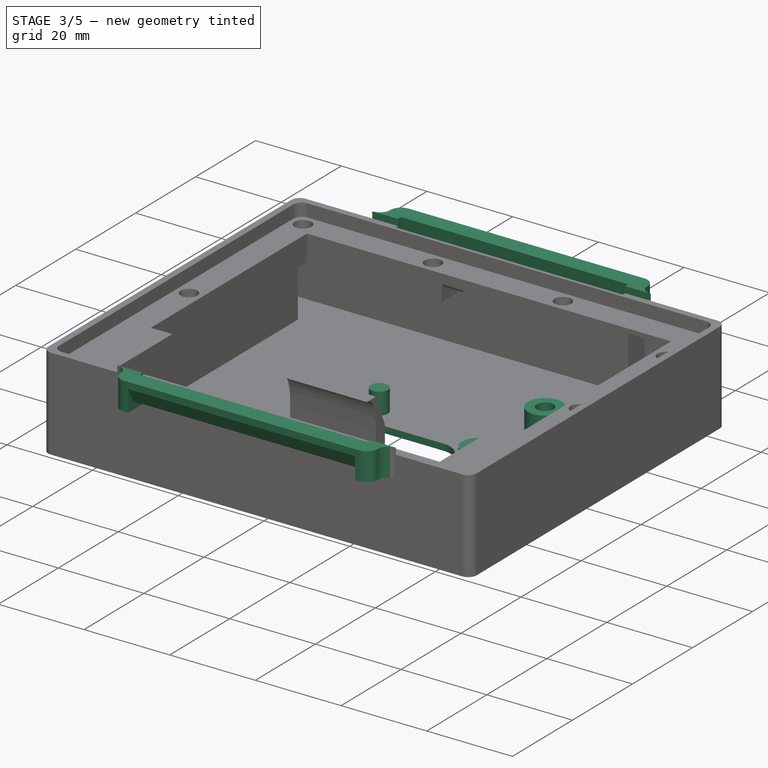
[diagram: stage 3 of 5 — iso view after this stage's code; geometry added in this stage tinted green]
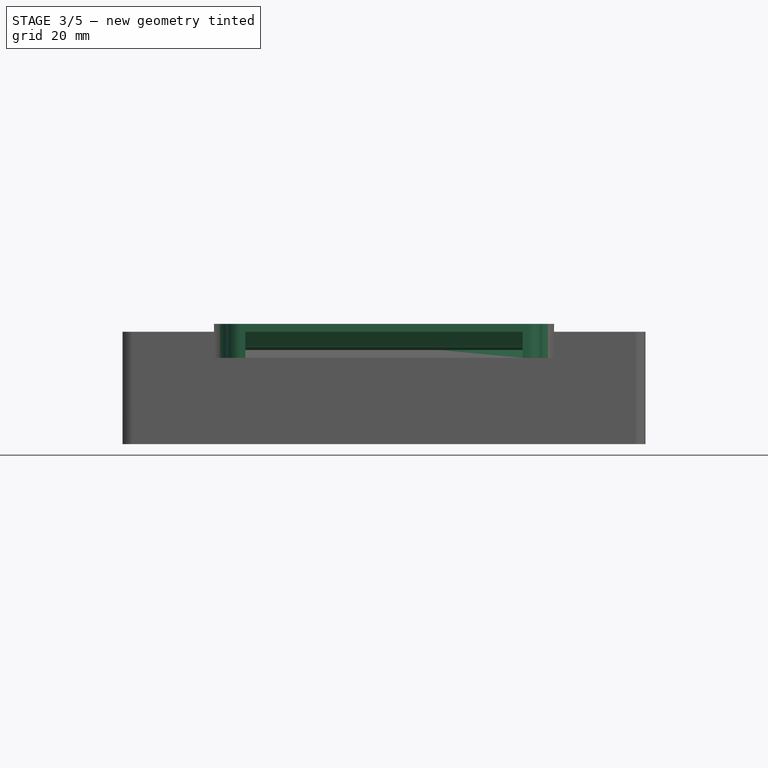
[diagram: stage 3 of 5 — front view after this stage's code; geometry added in this stage tinted green]
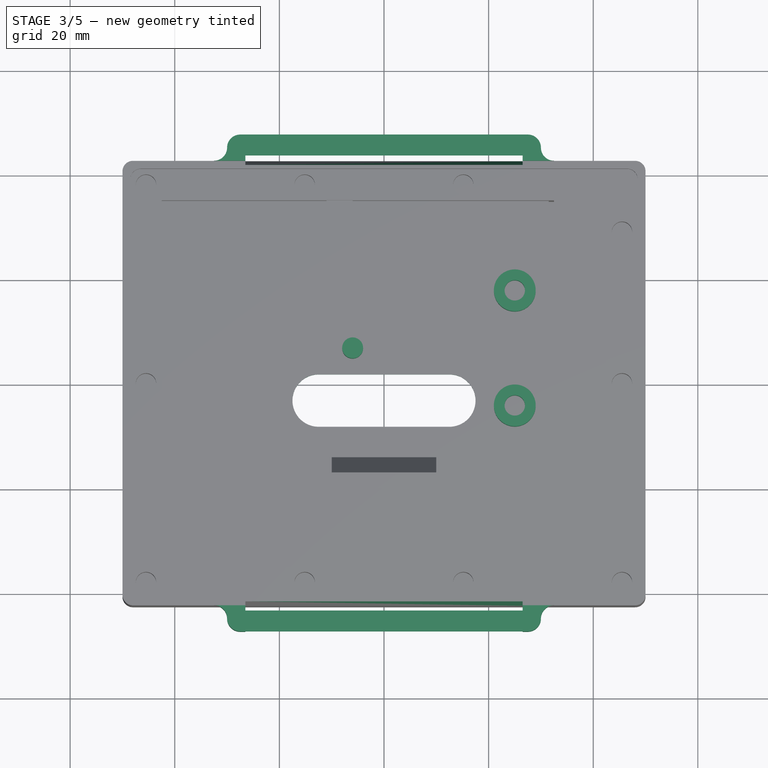
[diagram: stage 3 of 5 — top view after this stage's code; geometry added in this stage tinted green]
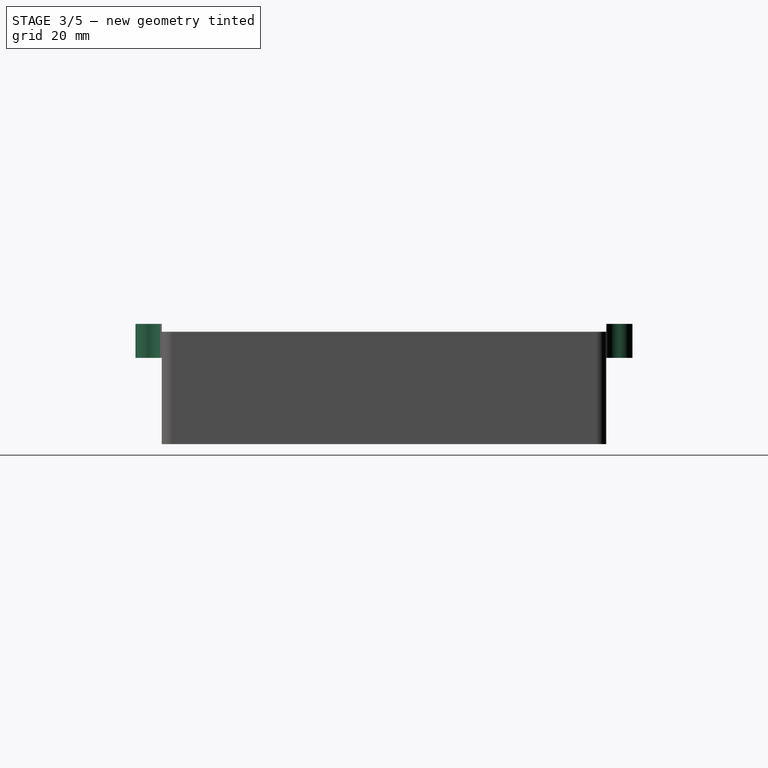
[diagram: stage 3 of 5 — right view after this stage's code; geometry added in this stage tinted green]
FEATURE [PartDesign::Pad] Pad008  label="BoxPCBMount"
  BaseFeature = -> Pad007
  Direction = (0,0,1)
  Length = 6.5
  Length2 = 10
  Profile = -> Sketch013
  ReferenceAxis = -> Sketch013 [N_Axis]
  Refine = true
  SideType = 0
  Suppressed = false
  Type = 0
  Type2 = 0
FEATURE [PartDesign::Fillet] Fillet  label="AntennaSpaceFillet"
  Base = -> Pad008 [Edge74]
  BaseFeature = -> Pad008
  Radius = 1
  Refine = true
  SupportTransform = false
  Suppressed = false
  UseAllEdges = false
FEATURE [PartDesign::Pad] Pad010  label="StrapMainbody"
  BaseFeature = -> Fillet
  Direction = (0,0,1)
  Length = 5
  Length2 = 1.5
  Profile = -> Sketch015
  ReferenceAxis = -> Sketch015 [N_Axis]
  Refine = true
  Reversed = true
  SideType = 1
  Suppressed = false
  Type = 0
  Type2 = 0
FEATURE [PartDesign::Pocket] Pocket005  label="StrapHolder"
  BaseFeature = -> Pad010
  Direction = (-1,0,0)
  Length = 53
  Length2 = 5
  Profile = -> Sketch004
  ReferenceAxis = -> Sketch004 [N_Axis]
  Refine = true
  SideType = 2
  Suppressed = false
  Type = 0
  Type2 = 0
FEATURE [Sketcher::SketchObject] Sketch016  label="SolarPanelGapSketch"
  ArcFitTolerance = 1e-06
  AttachmentSupport = -> [Pocket005]
  ExternalGeometry = -> [Sketch]
  ExternalTypes = [0,0]
  FullyConstrained = true
  MakeInternals = false
  MapMode = 5
  Placement = pos=(0,0,0) rot=(1,0,0;3.14159rad)
  _ExternalGeoVersion = 1
  expr: Constraints[15] = <<sheet>>.PanelLength
  expr: Constraints[16] = <<sheet>>.PanelWidth
  expr: Constraints[17] = <<sheet>>.PanelWidth / 2
  sketch-geometry (8):
    g0: ArcOfCircle CenterX=-12.5 CenterY=3 CenterZ=0 NormalX=0 NormalY=0 NormalZ=1 AngleXU=0 Radius=5 StartAngle=1.5708 EndAngle=4.71239
    g1: ArcOfCircle CenterX=12.5 CenterY=3 CenterZ=0 NormalX=0 NormalY=0 NormalZ=1 AngleXU=0 Radius=5 StartAngle=4.71239 EndAngle=7.85398
    g2: LineSegment StartX=-12.5 StartY=8 StartZ=0 EndX=12.5 EndY=8 EndZ=0
    g3: LineSegment StartX=-12.5 StartY=-2 StartZ=0 EndX=12.5 EndY=-2 EndZ=0
    g4: LineSegment [constr] StartX=-48 StartY=40.5 StartZ=0 EndX=-48 EndY=-34.5 EndZ=0
    g5: LineSegment [constr] StartX=-48 StartY=-34.5 StartZ=0 EndX=47 EndY=-34.5 EndZ=0
    g6: LineSegment [constr] StartX=47 StartY=-34.5 StartZ=0 EndX=47 EndY=40.5 EndZ=0
    g7: LineSegment [constr] StartX=47 StartY=40.5 StartZ=0 EndX=-48 EndY=40.5 EndZ=0
  constraints (21):
    c: Tangent(g0,g2) = 1.5708
    c: Tangent(g0,g3) = -1.5708
    c: Tangent(g1,g2) = 1.5708
    c: Tangent(g1,g3) = -1.5708
    c: Equal(g0,g1)
    c: Coincident(g4,g5)
    c: Coincident(g5,g6)
    c: Coincident(g6,g7)
    c: Coincident(g7,g4)
    c: Vertical(g4)
    c: Vertical(g6)
    c: Horizontal(g5)
    c: Horizontal(g7)
    c: Horizontal(g4,g-4)
    c: Vertical(g4,g-3)
    c: DistanceX(g7,g7) = 95
    c: DistanceY(g6,g6) = 75
    c: DistanceY(g0,g4) = 37.5
    c: Distance(g0,g0) = 10
    c: DistanceX(g0,g1) = 25
    c: Symmetric(g1,g0,g-2)
FEATURE [PartDesign::Pocket] Pocket006  label="SolarPanelGap"
  BaseFeature = -> Pocket005
  Direction = (0,0,1)
  Length = 5
  Length2 = 5
  Profile = -> Sketch016
  ReferenceAxis = -> Sketch016 [N_Axis]
  Refine = true
  SideType = 0
  Suppressed = false
  Type = 0
  Type2 = 0
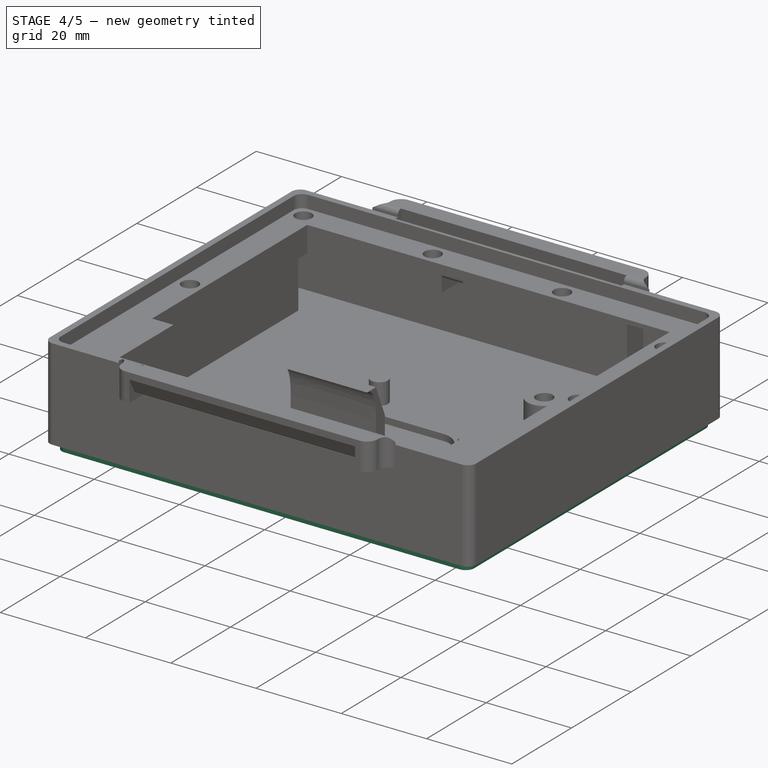
[diagram: stage 4 of 5 — iso view after this stage's code; geometry added in this stage tinted green]
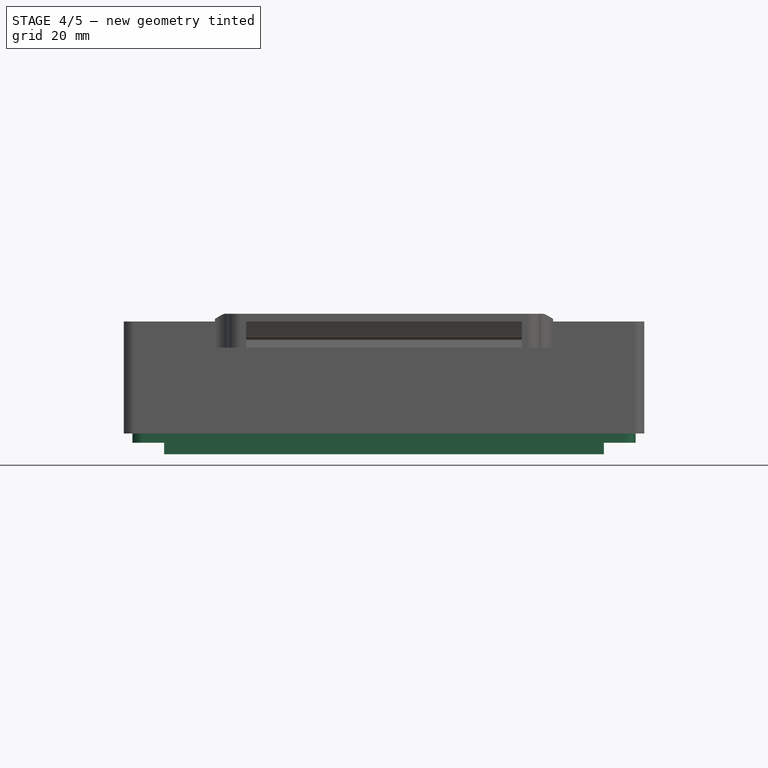
[diagram: stage 4 of 5 — front view after this stage's code; geometry added in this stage tinted green]
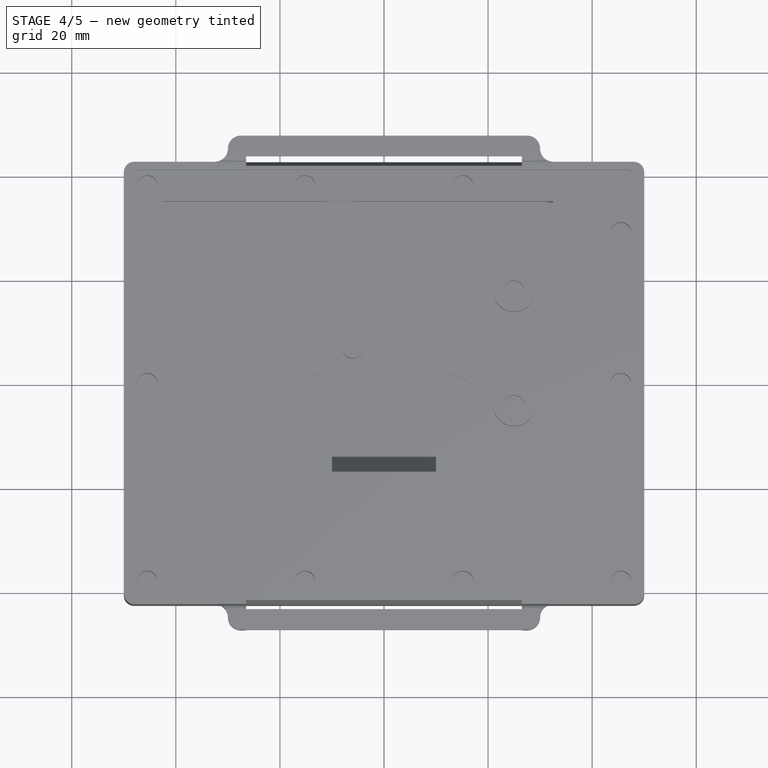
[diagram: stage 4 of 5 — top view after this stage's code; geometry added in this stage tinted green]
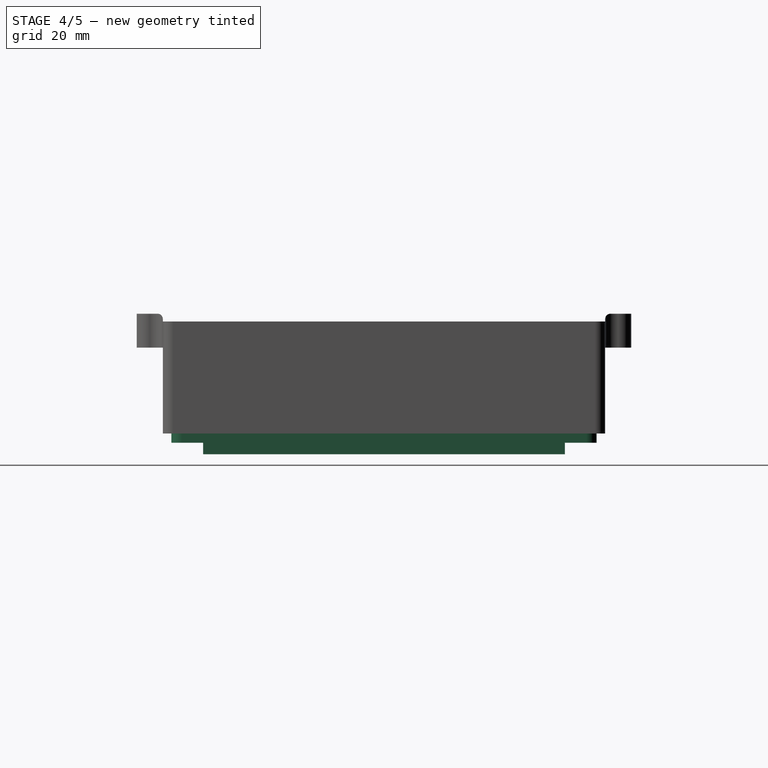
[diagram: stage 4 of 5 — right view after this stage's code; geometry added in this stage tinted green]
FEATURE [App::Point] Origin003
  Role = Origin
FEATURE [Sketcher::SketchObject] Sketch003  label="LidBaseSketch"
  ArcFitTolerance = 1e-06
  AttachmentSupport = -> [Origin002]
  ExternalTypes = [0]
  FullyConstrained = true
  MakeInternals = false
  MapMode = 5
  _ExternalGeoVersion = 1
  expr: Constraints[19] = <<sheet>>.LidOuterLength
  expr: Constraints[20] = <<sheet>>.LidOuterWidth
  expr: Constraints[21] = <<sheet>>.BoxCornerRadius
  sketch-geometry (10):
    g0: LineSegment StartX=48.35 StartY=-38.85 StartZ=0 EndX=48.35 EndY=38.85 EndZ=0
    g1: LineSegment StartX=46.35 StartY=40.85 StartZ=0 EndX=-46.35 EndY=40.85 EndZ=0
    g2: LineSegment StartX=-48.35 StartY=38.85 StartZ=0 EndX=-48.35 EndY=-38.85 EndZ=0
    g3: LineSegment StartX=-46.35 StartY=-40.85 StartZ=0 EndX=46.35 EndY=-40.85 EndZ=0
    g4: ArcOfCircle CenterX=46.35 CenterY=-38.85 CenterZ=0 NormalX=0 NormalY=0 NormalZ=1 AngleXU=0 Radius=2 StartAngle=4.71239 EndAngle=6.28319
    g5: ArcOfCircle CenterX=46.35 CenterY=38.85 CenterZ=0 NormalX=0 NormalY=0 NormalZ=1 AngleXU=0 Radius=2 StartAngle=1.2e-15 EndAngle=1.5708
    g6: ArcOfCircle CenterX=-46.35 CenterY=38.85 CenterZ=0 NormalX=0 NormalY=0 NormalZ=1 AngleXU=0 Radius=2 StartAngle=1.5708 EndAngle=3.14159
    g7: ArcOfCircle CenterX=-46.35 CenterY=-38.85 CenterZ=0 NormalX=0 NormalY=0 NormalZ=1 AngleXU=0 Radius=2 StartAngle=3.14159 EndAngle=4.71239
    g8: GeomPoint [constr] X=-48.35 Y=40.85 Z=0
    g9: GeomPoint [constr] X=0 Y=0 Z=0
  constraints (22):
    c: Tangent(g0,g4) = -1.5708
    c: Tangent(g0,g5) = -1.5708
    c: Tangent(g1,g5) = -1.5708
    c: Tangent(g1,g6) = -1.5708
    c: Tangent(g2,g6) = -1.5708
    c: Tangent(g2,g7) = -1.5708
    c: Tangent(g3,g7) = -1.5708
    c: Tangent(g3,g4) = -1.5708
    c: Vertical(g0)
    c: Vertical(g2)
    c: Horizontal(g1)
    c: Horizontal(g3)
    c: Equal(g4,g5)
    c: Equal(g5,g6)
    c: Equal(g6,g7)
    c: Symmetric(g2,g0,g9)
    c: PointOnObject(g8,g1)
    c: PointOnObject(g8,g2)
    c: Coincident(g9,g-1)
    c: DistanceX(g2,g0) = 96.7
    c: DistanceY(g3,g1) = 81.7
    c: Radius(g5) = 2
FEATURE [PartDesign::Pad] Pad001  label="LidBase"
  Direction = (0,0,1)
  Length = 1.8
  Length2 = 10
  Profile = -> Sketch003
  ReferenceAxis = -> Sketch003 [N_Axis]
  Refine = true
  Reversed = true
  SideType = 0
  Suppressed = false
  Type = 0
  Type2 = 0
  expr: Length = <<sheet>>.LidHeight
FEATURE [PartDesign::ShapeBinder] ShapeBinder
  Placement = pos=(0,0,21.5) rot=(0,0,1;0rad)
  Support = -> [Sketch007]
  TraceSupport = false
FEATURE [Sketcher::SketchObject] Sketch009
  ArcFitTolerance = 1e-06
  AttachmentSupport = -> [Origin002]
  ExternalGeometry = -> [ShapeBinder]
  ExternalTypes = [0,0,0,0,0,0,0,0,0,0]
  FullyConstrained = true
  MakeInternals = false
  MapMode = 5
  _ExternalGeoVersion = 1
FEATURE [PartDesign::Hole] Hole
  BaseFeature = -> Pad001
  BaseProfileType = 7
  CustomThreadClearance = 0
  Depth = 25
  DepthType = 0
  Diameter = 3.2
  DrillForDepth = true
  DrillPoint = 1
  DrillPointAngle = 118
  HoleCutCountersinkAngle = 90
  HoleCutCustomValues = false
  HoleCutDepth = 2.85
  HoleCutDiameter = 5.7
  HoleCutType = 2
  ModelThread = false
  Profile = -> Sketch009
  Refine = true
  Suppressed = false
  Tapered = false
  TaperedAngle = 90
  ThreadClass = 0
  ThreadDepth = 25
  ThreadDepthType = 0
  ThreadDiameter = 3
  ThreadDirection = 0
  ThreadFit = 1
  ThreadSize = 9
  ThreadType = 2
  Threaded = false
  UseCustomThreadClearance = false
FEATURE [Sketcher::SketchObject] Sketch011  label="BatHolderClipguideSketch"
  ArcFitTolerance = 1e-06
  AttachmentSupport = -> [Origin]
  ExternalTypes = [0]
  FullyConstrained = true
  MakeInternals = false
  MapMode = 5
  Placement = pos=(0,0,0) rot=(0.57735,0.57735,0.57735;2.0944rad)
  _ExternalGeoVersion = 1
  expr: Constraints[14] = <<sheet>>.BoxInnerWidth
  expr: Constraints[15] = <<sheet>>.BatteryWidth
  expr: Constraints[17] = <<sheet>>.BatteryHeight - 3.5 mm
  sketch-geometry (7):
    g0: LineSegment StartX=-35 StartY=0 StartZ=0 EndX=-17 EndY=0 EndZ=0
    g1: LineSegment StartX=-17 StartY=0 StartZ=0 EndX=-17 EndY=4 EndZ=0
    g2: LineSegment StartX=-17 StartY=4 StartZ=0 EndX=-31 EndY=4 EndZ=0
    g3: LineSegment StartX=-31 StartY=4 StartZ=0 EndX=-31 EndY=14.5 EndZ=0
    g4: LineSegment StartX=-31 StartY=14.5 StartZ=0 EndX=-35 EndY=14.5 EndZ=0
    g5: LineSegment StartX=-35 StartY=14.5 StartZ=0 EndX=-35 EndY=0 EndZ=0
    g6: LineSegment [constr] StartX=-35 StartY=0 StartZ=0 EndX=35 EndY=0 EndZ=0
  constraints (20):
    c: PointOnObject(g0,g-1)
    c: PointOnObject(g0,g-1)
    c: Coincident(g1,g0)
    c: Vertical(g1)
    c: Coincident(g1,g2)
    c: Coincident(g2,g3)
    c: Coincident(g3,g4)
    c: Horizontal(g4)
    c: Coincident(g4,g5)
    c: Coincident(g5,g0)
    c: Horizontal(g2)
    c: Vertical(g3)
    c: Vertical(g5)
    c: Symmetric(g6,g6,g-2)
    c: DistanceX(g6,g6) = 70
    c: DistanceX(g0,g0) = 18
    c: Coincident(g0,g6)
    c: DistanceY(g5,g5) = 14.5
    c: Equal(g1,g4)
    c: DistanceX(g4,g4) = 4
FEATURE [Sketcher::SketchObject] Sketch010  label="BatHolderClipSketch"
  ArcFitTolerance = 1e-06
  AttachmentSupport = -> [Origin]
  ExternalGeometry = -> [Sketch011]
  ExternalTypes = [1]
  FullyConstrained = true
  MakeInternals = false
  MapMode = 5
  Placement = pos=(0,0,0) rot=(0.57735,0.57735,0.57735;2.0944rad)
  _ExternalGeoVersion = 1
  sketch-geometry (11):
    g0: LineSegment StartX=-17 StartY=0 StartZ=0 EndX=-14 EndY=0 EndZ=0
    g1: LineSegment StartX=-14 StartY=0 StartZ=0 EndX=-14 EndY=11 EndZ=0
    g2: LineSegment StartX=-17 StartY=11 StartZ=0 EndX=-17 EndY=0 EndZ=0
    g3: LineSegment StartX=-20 StartY=18 StartZ=0 EndX=-17 EndY=18 EndZ=0
    g4: LineSegment StartX=-14 StartY=11 StartZ=0 EndX=-17 EndY=18 EndZ=0
    g5: Circle [constr] CenterX=-20 CenterY=18 CenterZ=0 NormalX=0 NormalY=0 NormalZ=1 AngleXU=0 Radius=1
    g6: Circle [constr] CenterX=-17 CenterY=18 CenterZ=0 NormalX=0 NormalY=0 NormalZ=1 AngleXU=0 Radius=1
    g7: Circle [constr] CenterX=-17 CenterY=11 CenterZ=0 NormalX=0 NormalY=0 NormalZ=1 AngleXU=0 Radius=1
    g8: BSplineCurve PolesCount=3 KnotsCount=2 Degree=2 IsPeriodic=0
    g9: GeomPoint [constr] X=-20 Y=18 Z=0
    g10: GeomPoint [constr] X=-17 Y=11 Z=0
  constraints (26):
    c: PointOnObject(g0,g-1)
    c: Coincident(g0,g1)
    c: Vertical(g1)
    c: Coincident(g2,g0)
    c: Vertical(g2)
    c: Coincident(g4,g1)
    c: Coincident(g4,g3)
    c: Horizontal(g3)
    c: DistanceY(g-1,g3) = 18
    c: Weight(g5) = 1
    c: Equal(g5,g6)
    c: Equal(g5,g7)
    c: InternalAlignment(g5,g8)
    c: InternalAlignment(g6,g8)
    c: InternalAlignment(g7,g8)
    c: InternalAlignment(g9,g8)
    c: InternalAlignment(g10,g8)
    c: Coincident(g5,g3)
    c: Coincident(g6,g3)
    c: Coincident(g7,g2)
    c: DistanceX(g0,g0) = 3
    c: Vertical(g3,g8)
    c: DistanceX(g8,g3) = 3
    c: Horizontal(g8,g1)
    c: DistanceY(g-1,g8) = 11
    c: Coincident(g0,g-3)
FEATURE [Sketcher::SketchObject] Sketch012  label="BatHolderMountSketch"
  ArcFitTolerance = 1e-06
  AttachmentSupport = -> [Origin]
  ExternalTypes = [0]
  FullyConstrained = true
  MakeInternals = false
  MapMode = 5
  _ExternalGeoVersion = 1
  expr: Constraints[10] = <<sheet>>.BoxInnerLength
  expr: Constraints[11] = <<sheet>>.BoxInnerWidth
  expr: Constraints[31] = <<sheet>>.BatteryMountDistance
  expr: Constraints[33] = <<sheet>>.BatteryWidth
  sketch-geometry (13):
    g0: LineSegment [constr] StartX=42.5 StartY=-35 StartZ=0 EndX=42.5 EndY=35 EndZ=0
    g1: LineSegment [constr] StartX=42.5 StartY=35 StartZ=0 EndX=-42.5 EndY=35 EndZ=0
    g2: LineSegment [constr] StartX=-42.5 StartY=35 StartZ=0 EndX=-42.5 EndY=-35 EndZ=0
    g3: LineSegment [constr] StartX=-42.5 StartY=-35 StartZ=0 EndX=42.5 EndY=-35 EndZ=0
    g4: GeomPoint [constr] X=0 Y=0 Z=0
    g5: LineSegment StartX=-42.5 StartY=-35 StartZ=0 EndX=-37.5 EndY=-35 EndZ=0
    g6: LineSegment StartX=-37.5 StartY=-35 StartZ=0 EndX=-37.5 EndY=-17 EndZ=0
    g7: LineSegment StartX=-37.5 StartY=-17 StartZ=0 EndX=-42.5 EndY=-17 EndZ=0
    g8: LineSegment StartX=-42.5 StartY=-17 StartZ=0 EndX=-42.5 EndY=-35 EndZ=0
    g9: LineSegment StartX=42.5 StartY=-35 StartZ=0 EndX=42.5 EndY=-17 EndZ=0
    g10: LineSegment StartX=42.5 StartY=-17 StartZ=0 EndX=37.5 EndY=-17 EndZ=0
    g11: LineSegment StartX=37.5 StartY=-17 StartZ=0 EndX=37.5 EndY=-35 EndZ=0
    g12: LineSegment StartX=37.5 StartY=-35 StartZ=0 EndX=42.5 EndY=-35 EndZ=0
  constraints (34):
    c: Coincident(g0,g1)
    c: Coincident(g1,g2)
    c: Coincident(g2,g3)
    c: Coincident(g3,g0)
    c: Vertical(g0)
    c: Vertical(g2)
    c: Horizontal(g1)
    c: Horizontal(g3)
    c: Symmetric(g2,g0,g4)
    c: Coincident(g4,g-1)
    c: DistanceX(g1,g1) = 85
    c: DistanceY(g0,g0) = 70
    c: Coincident(g5,g6)
    c: Coincident(g6,g7)
    c: Coincident(g7,g8)
    c: Coincident(g8,g5)
    c: Horizontal(g5)
    c: Horizontal(g7)
    c: Vertical(g6)
    c: Vertical(g8)
    c: Coincident(g5,g2)
    c: Coincident(g9,g10)
    c: Coincident(g10,g11)
    c: Coincident(g11,g12)
    c: Coincident(g12,g9)
    c: Vertical(g9)
    c: Vertical(g11)
    c: Horizontal(g10)
    c: Horizontal(g12)
    c: Coincident(g9,g0)
    c: Horizontal(g10,g6)
    c: DistanceX(g6,g10) = 75
    c: Equal(g10,g7)
    c: DistanceY(g0,g9) = 18
FEATURE [Sketcher::SketchObject] Sketch013  label="BoxPCBMountSketch"
  ArcFitTolerance = 1e-06
  AttachmentSupport = -> [Origin]
  ExternalTypes = [0]
  FullyConstrained = true
  MakeInternals = false
  MapMode = 5
  _ExternalGeoVersion = 1
  expr: Constraints[9] = .Constraints.PCBMountDistance / 2
  sketch-geometry (5):
    g0: Circle CenterX=-6 CenterY=7 CenterZ=0 NormalX=0 NormalY=0 NormalZ=1 AngleXU=0 Radius=2
    g1: Circle CenterX=25 CenterY=18 CenterZ=0 NormalX=0 NormalY=0 NormalZ=1 AngleXU=0 Radius=4
    g2: Circle CenterX=25 CenterY=18 CenterZ=0 NormalX=0 NormalY=0 NormalZ=1 AngleXU=0 Radius=1.95
    g3: Circle CenterX=25 CenterY=-4 CenterZ=0 NormalX=0 NormalY=0 NormalZ=1 AngleXU=0 Radius=4
    g4: Circle CenterX=25 CenterY=-4 CenterZ=0 NormalX=0 NormalY=0 NormalZ=1 AngleXU=0 Radius=1.95
  constraints (13):
    c: Coincident(g2,g1)
    c: Coincident(g4,g3)
    c: Equal(g2,g4)
    c: Equal(g3,g1)
    c: Diameter(g2) = 3.9
    c: Diameter(g1) = 8
    c: Vertical(g1,g3)
    c: DistanceY(g3,g1) = 22  'PCBMountDistance'
    c: Diameter(g0) = 4
    c: DistanceY(g3,g0) = 11
    c: DistanceX(g0,g3) = 31
    c: DistanceX(g-1,g3) = 25
    c: DistanceY(g3,g-1) = 4
FEATURE [Sketcher::SketchObject] Sketch014
  ArcFitTolerance = 1e-06
  AttachmentSupport = -> [Hole]
  ExternalGeometry = -> [Sketch003]
  ExternalTypes = [0]
  FullyConstrained = true
  MakeInternals = false
  MapMode = 5
  _ExternalGeoVersion = 1
  expr: Constraints[19] = <<sheet>>.BoxCornerRadius
  expr: Constraints[20] = <<sheet>>.LidInnerLength - 2 * <<sheet>>.LidInnerMargin
  expr: Constraints[22] = <<sheet>>.LidInnerWidth - 2 * <<sheet>>.LidInnerMargin
  expr: Constraints[24] = <<sheet>>.LidInnerWidth / 2 - <<sheet>>.LidInnerMargin
  expr: Constraints[25] = <<sheet>>.BatteryWidth
  expr: Constraints[28] = <<sheet>>.BatteryMountDistance - 2 * <<sheet>>.LidInnerMargin
  expr: Constraints[50] = .Constraints.BatterySealWidth
  sketch-geometry (23):
    g0: LineSegment StartX=-37.4 StartY=-34.75 StartZ=0 EndX=37.4 EndY=-34.75 EndZ=0
    g1: LineSegment StartX=37.4 StartY=-34.75 StartZ=0 EndX=37.4 EndY=-16.75 EndZ=0
    g2: LineSegment StartX=37.4 StartY=-16.75 StartZ=0 EndX=42.25 EndY=-16.75 EndZ=0
    g3: LineSegment StartX=42.25 StartY=-16.75 StartZ=0 EndX=42.25 EndY=32.35 EndZ=0
    g4: LineSegment StartX=42.25 StartY=32.35 StartZ=0 EndX=32.25 EndY=32.35 EndZ=0
    g5: LineSegment StartX=32.25 StartY=32.35 StartZ=0 EndX=32.25 EndY=34.75 EndZ=0
    g6: LineSegment StartX=32.25 StartY=34.75 StartZ=0 EndX=-40.25 EndY=34.75 EndZ=0
    g7: LineSegment StartX=-42.25 StartY=32.75 StartZ=0 EndX=-42.25 EndY=-16.75 EndZ=0
    g8: LineSegment StartX=-42.25 StartY=-16.75 StartZ=0 EndX=-37.4 EndY=-16.75 EndZ=0
    g9: LineSegment StartX=-37.4 StartY=-16.75 StartZ=0 EndX=-37.4 EndY=-34.75 EndZ=0
    g10: ArcOfCircle CenterX=-40.25 CenterY=32.75 CenterZ=0 NormalX=0 NormalY=0 NormalZ=1 AngleXU=0 Radius=2 StartAngle=1.5708 EndAngle=3.14159
    g11: LineSegment StartX=-36.4 StartY=-33.75 StartZ=0 EndX=-36.4 EndY=-13.75 EndZ=0
    g12: LineSegment StartX=-36.4 StartY=-33.75 StartZ=0 EndX=36.4 EndY=-33.75 EndZ=0
    g13: LineSegment StartX=36.4 StartY=-33.75 StartZ=0 EndX=36.4 EndY=-13.75 EndZ=0
    g14: LineSegment [constr] StartX=-37.4 StartY=-34.75 StartZ=0 EndX=-36.4 EndY=-34.75 EndZ=0
    g15: LineSegment [constr] StartX=-36.4 StartY=-34.75 StartZ=0 EndX=-36.4 EndY=-33.75 EndZ=0
    g16: LineSegment [constr] StartX=-36.4 StartY=-33.75 StartZ=0 EndX=-37.4 EndY=-33.75 EndZ=0
    g17: LineSegment [constr] StartX=-37.4 StartY=-33.75 StartZ=0 EndX=-37.4 EndY=-34.75 EndZ=0
    g18: LineSegment StartX=-36.4 StartY=-13.75 StartZ=0 EndX=36.4 EndY=-13.75 EndZ=0
    g19: LineSegment StartX=-12.75 StartY=25.35 StartZ=0 EndX=-12.75 EndY=-9.65 EndZ=0
    g20: LineSegment StartX=-12.75 StartY=-9.65 StartZ=0 EndX=32.25 EndY=-9.65 EndZ=0
    g21: LineSegment StartX=32.25 StartY=-9.65 StartZ=0 EndX=32.25 EndY=25.35 EndZ=0
    g22: LineSegment StartX=32.25 StartY=25.35 StartZ=0 EndX=-12.75 EndY=25.35 EndZ=0
  constraints (67):
    c: Horizontal(g0)
    c: Coincident(g1,g2)
    c: Coincident(g2,g3)
    c: Vertical(g3)
    c: Coincident(g3,g4)
    c: Coincident(g4,g5)
    c: Coincident(g5,g6)
    c: Horizontal(g6)
    c: Coincident(g7,g8)
    c: Coincident(g8,g9)
    c: Coincident(g10,g6)
    c: Coincident(g10,g7)
    c: Vertical(g7)
    c: Horizontal(g8)
    c: Horizontal(g2)
    c: Vertical(g9)
    c: Vertical(g1)
    c: Horizontal(g4)
    c: Vertical(g5)
    c: Radius(g10) = 2
    c: DistanceX(g7,g3) = 84.5
    c: Symmetric(g2,g7,g-2)
    c: DistanceY(g0,g6) = 69.5
    c: Equal(g8,g2)
    c: DistanceY(g-1,g5) = 34.75
    c: DistanceY(g0,g2) = 18
    c: Coincident(g9,g0)
    c: Coincident(g1,g0)
    c: DistanceX(g0,g0) = 74.8
    c: DistanceX(g4,g4) = 10
    c: Vertical(g10,g6)
    c: Horizontal(g10,g7)
    c: Vertical(g11)
    c: Horizontal(g12)
    c: Coincident(g12,g13)
    c: Vertical(g13)
    c: Coincident(g14,g15)
    c: Coincident(g15,g16)
    c: Coincident(g16,g17)
    c: Coincident(g17,g14)
    c: Horizontal(g14)
    c: Horizontal(g16)
    c: Vertical(g15)
    c: Vertical(g17)
    c: Coincident(g14,g0)
    c: Coincident(g15,g11)
    c: Equal(g16,g15)
    c: Coincident(g12,g11)
    c: Horizontal(g18)
    c: DistanceY(g15,g15) = 1  'BatterySealWidth'
    c: DistanceX(g12,g0) = 1
    c: Coincident(g11,g18)
    c: Coincident(g18,g13)
    c: DistanceY(g12,g13) = 20
    c: Coincident(g19,g20)
    c: Coincident(g20,g21)
    c: Coincident(g21,g22)
    c: Coincident(g22,g19)
    c: Vertical(g19)
    c: Vertical(g21)
    c: Horizontal(g20)
    c: Horizontal(g22)
    c: Vertical(g21,g4)
    c: DistanceY(g21,g21) = 35
    c: DistanceX(g22,g22) = 45
    c: DistanceY(g21,g4) = 7
    c: DistanceY(g3,g-3) = 8.5
FEATURE [PartDesign::Pad] Pad009  label="LidInnerstructure"
  BaseFeature = -> Hole
  Direction = (0,0,1)
  Length = 4
  Length2 = 10
  Profile = -> Sketch014
  ReferenceAxis = -> Sketch014 [N_Axis]
  Refine = true
  Reversed = true
  SideType = 0
  Suppressed = false
  Type = 0
  Type2 = 0
FEATURE [PartDesign::Fillet] Fillet001  label="StrapInsideFiller"
  Base = -> Pocket006 [Edge231,Edge260,Edge277,Edge248]
  BaseFeature = -> Pocket006
  Radius = 1
  Refine = true
  SupportTransform = false
  Suppressed = false
  UseAllEdges = false
FEATURE [PartDesign::Body] Body001  label="Lid"
  AllowCompound = true
  Group = -> [Sketch003,Pad001,ShapeBinder,Sketch009,Hole,Sketch014,Pad009,Sketch020,Pocket008,Sketch021,Pad013]
  Origin = -> Origin002
  Placement = pos=(0,1.07e-14,67) rot=(0,0,1;0rad)
  Tip = -> Pad013
FEATURE [Part::DatumPlane] DatumPlane002  label="TopLabelPlane"
  AttachmentSupport = -> [Fillet001]
  MapMode = 5
  Placement = pos=(0,42.5,0) rot=(0,0.707107,0.707107;3.14159rad)
FEATURE [Part::Part2DObjectPython] ShapeString  label="ShapeString001"  # Draft 2D object (typed FeaturePython)
  FontFile = <path>
  Fuse = false
  Justification = 6
  JustificationReference = 0
  KeepLeftMargin = false
  MakeFace = true
  ObliqueAngle = 0
  Placement = pos=(14.6055,42.5,2.86761) rot=(0,0.707107,0.707107;3.14159rad)
  ScaleToSize = true
  Size = 10
  String = TOP
  Tracking = 0
FEATURE [PartDesign::Pocket] Pocket009  label="TopLabel"
  BaseFeature = -> Fillet001
  Direction = (-1e-16,-1,2e-16)
  Length = 0.3
  Length2 = 5
  Profile = -> ShapeString
  ReferenceAxis = -> ShapeString [N_Axis]
  Refine = true
  SideType = 0
  Suppressed = false
  Type = 0
  Type2 = 0
  expr: Length = 0.3
FEATURE [PartDesign::Body] Body  label="Box"
  AllowCompound = true
  Group = -> [Sketch,Pad,DatumPlane,Sketch001,Pocket,Sketch002,Pocket001,Sketch007,Pocket003,DatumPlane001,Sketch008,Pocket004,Chamfer,Sketch010,Pad004,Sketch011,Sketch012,Pad005,Pad006,Pad007,Sketch013,Pad008,Fillet,Sketch015,Pad010,Sketch004,Pocket005,Sketch016,Pocket006,Fillet001,DatumPlane002,ShapeString,Pocket009]
  Origin = -> Origin
  Tip = -> Pocket009
FEATURE [Measure::MeasureLength] Length  label="Length: 17.00 mm"
  Elements = -> [Body]
  Length = 17
FEATURE [Measure::MeasureLength] Length001  label="Length001: 1.50 mm"
  Elements = -> [Body]
  Length = 1.5
FEATURE [Measure::MeasureLength] Length002  label="Length002: 11.00 mm"
  Elements = -> [Body]
  Length = 11
FEATURE [Measure::MeasureLength] Length003  label="Length003: 16.00 mm"
  Elements = -> [Body]
  Length = 16
FEATURE [Measure::MeasureLength] Length004  label="Length004: 7.00 mm"
  Elements = -> [Body]
  Length = 7
FEATURE [Measure::MeasureLength] Length005  label="Length005: 5.00 mm"
  Elements = -> [Body]
  Length = 5
FEATURE [App::DocumentObjectGroup] Measurements
  Group = -> [Length,Length001,Length002,Length003,Length004,Length005]
note: 1 file-system path scrubbed to <path> (originals preserved in the JSON sidecar)
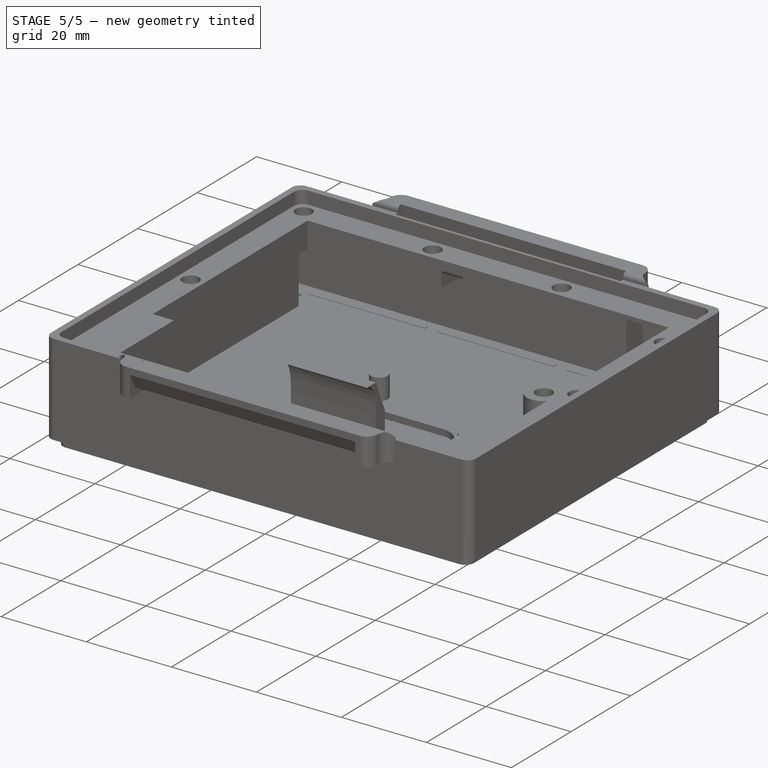
[diagram: stage 5 of 5 — iso view after this stage's code; geometry added in this stage tinted green]
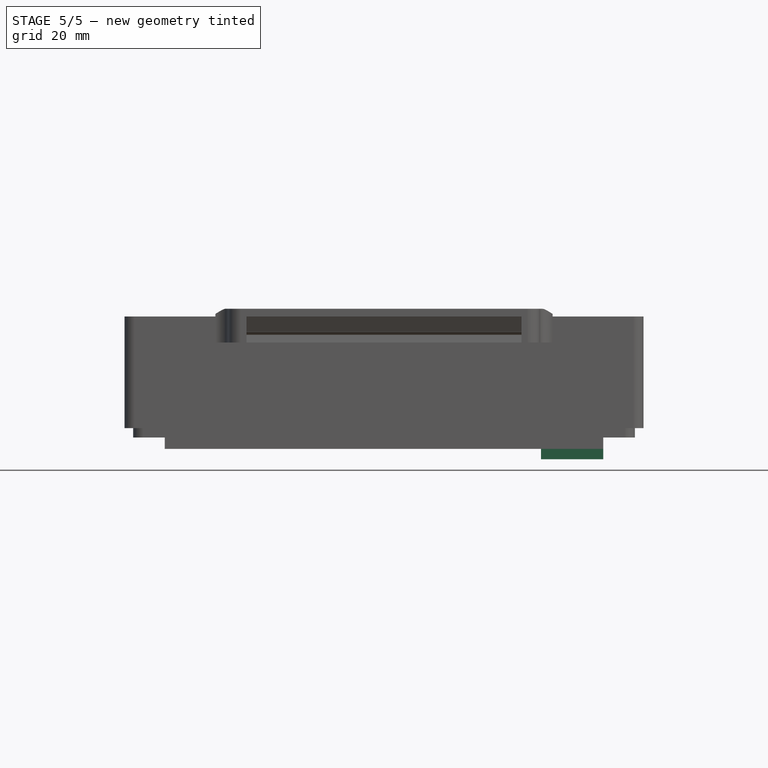
[diagram: stage 5 of 5 — front view after this stage's code; geometry added in this stage tinted green]
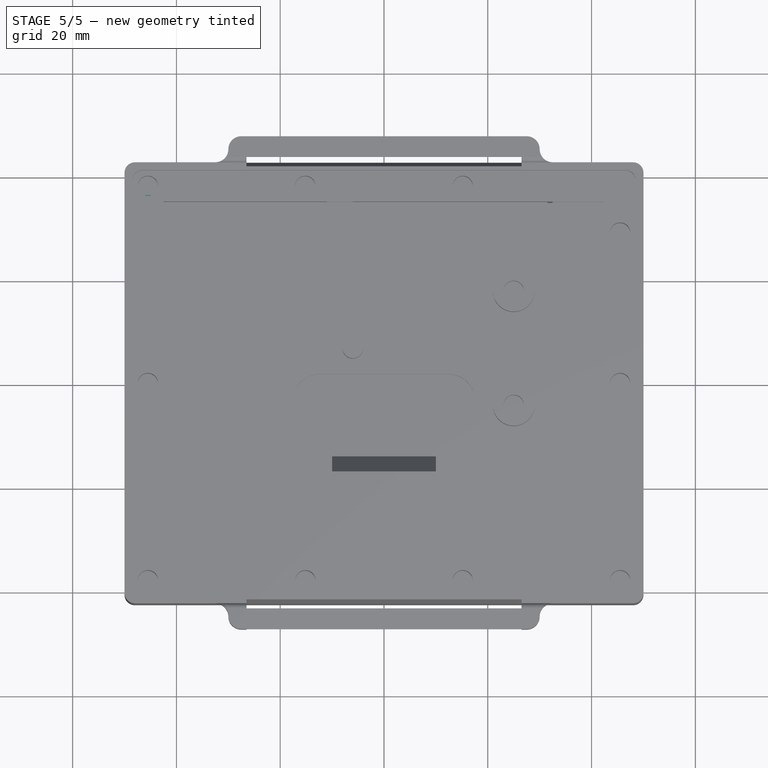
[diagram: stage 5 of 5 — top view after this stage's code; geometry added in this stage tinted green]
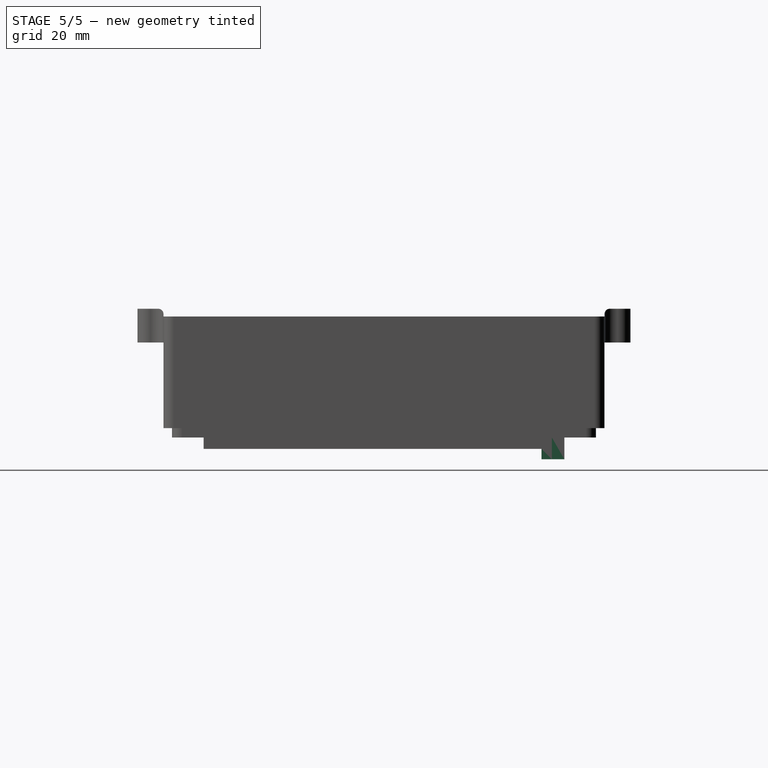
[diagram: stage 5 of 5 — right view after this stage's code; geometry added in this stage tinted green]
FEATURE [App::Point] Origin005  label="Origin006"
  Role = Origin
FEATURE [Sketcher::SketchObject] Sketch017  label="SealBaseSketch"
  ArcFitTolerance = 1e-06
  AttachmentSupport = -> [Origin004]
  ExternalTypes = [0]
  FullyConstrained = true
  MakeInternals = false
  MapMode = 5
  _ExternalGeoVersion = 1
  expr: Constraints[19] = <<sheet>>.BoxOuterLength - 2 * <<sheet>>.BoxLipThickness - 2 * <<sheet>>.SealMargin
  expr: Constraints[20] = <<sheet>>.BoxOuterWidth - 2 * <<sheet>>.BoxLipThickness - 2 * <<sheet>>.SealMargin
  expr: Constraints[21] = <<sheet>>.BoxCornerRadius
  expr: Constraints[38] = <<sheet>>.BatteryMountDistance
  expr: Constraints[40] = <<sheet>>.BatteryWidth
  expr: Constraints[41] = <<sheet>>.BoxInnerWidth
  expr: Constraints[42] = <<sheet>>.BoxInnerLength
  expr: Constraints[43] = <<sheet>>.BoxInnerWidth / 2
  sketch-geometry (18):
    g0: LineSegment StartX=48.3 StartY=-38.8 StartZ=0 EndX=48.3 EndY=38.8 EndZ=0
    g1: LineSegment StartX=46.3 StartY=40.8 StartZ=0 EndX=-46.3 EndY=40.8 EndZ=0
    g2: LineSegment StartX=-48.3 StartY=38.8 StartZ=0 EndX=-48.3 EndY=-38.8 EndZ=0
    g3: LineSegment StartX=-46.3 StartY=-40.8 StartZ=0 EndX=46.3 EndY=-40.8 EndZ=0
    g4: ArcOfCircle CenterX=46.3 CenterY=-38.8 CenterZ=0 NormalX=0 NormalY=0 NormalZ=1 AngleXU=0 Radius=2 StartAngle=4.71239 EndAngle=6.28319
    g5: ArcOfCircle CenterX=46.3 CenterY=38.8 CenterZ=0 NormalX=0 NormalY=0 NormalZ=1 AngleXU=0 Radius=2 StartAngle=1.2e-15 EndAngle=1.5708
    g6: ArcOfCircle CenterX=-46.3 CenterY=38.8 CenterZ=0 NormalX=0 NormalY=0 NormalZ=1 AngleXU=0 Radius=2 StartAngle=1.5708 EndAngle=3.14159
    g7: ArcOfCircle CenterX=-46.3 CenterY=-38.8 CenterZ=0 NormalX=0 NormalY=0 NormalZ=1 AngleXU=0 Radius=2 StartAngle=3.14159 EndAngle=4.71239
    g8: GeomPoint [constr] X=-48.3 Y=40.8 Z=0
    g9: GeomPoint [constr] X=0 Y=0 Z=0
    g10: LineSegment StartX=-42.5 StartY=35 StartZ=0 EndX=42.5 EndY=35 EndZ=0
    g11: LineSegment StartX=42.5 StartY=35 StartZ=0 EndX=42.5 EndY=-17 EndZ=0
    g12: LineSegment StartX=42.5 StartY=-17 StartZ=0 EndX=37.5 EndY=-17 EndZ=0
    g13: LineSegment StartX=37.5 StartY=-17 StartZ=0 EndX=37.5 EndY=-35 EndZ=0
    g14: LineSegment StartX=37.5 StartY=-35 StartZ=0 EndX=-37.5 EndY=-35 EndZ=0
    g15: LineSegment StartX=-37.5 StartY=-35 StartZ=0 EndX=-37.5 EndY=-17 EndZ=0
    g16: LineSegment StartX=-37.5 StartY=-17 StartZ=0 EndX=-42.5 EndY=-17 EndZ=0
    g17: LineSegment StartX=-42.5 StartY=-17 StartZ=0 EndX=-42.5 EndY=35 EndZ=0
  constraints (45):
    c: Tangent(g0,g4) = -1.5708
    c: Tangent(g0,g5) = -1.5708
    c: Tangent(g1,g5) = -1.5708
    c: Tangent(g1,g6) = -1.5708
    c: Tangent(g2,g6) = -1.5708
    c: Tangent(g2,g7) = -1.5708
    c: Tangent(g3,g7) = -1.5708
    c: Tangent(g3,g4) = -1.5708
    c: Vertical(g0)
    c: Vertical(g2)
    c: Horizontal(g1)
    c: Horizontal(g3)
    c: Equal(g4,g5)
    c: Equal(g5,g6)
    c: Equal(g6,g7)
    c: Symmetric(g2,g0,g9)
    c: PointOnObject(g8,g1)
    c: PointOnObject(g8,g2)
    c: Coincident(g9,g-1)
    c: DistanceX(g2,g0) = 96.6
    c: DistanceY(g3,g1) = 81.6
    c: Radius(g5) = 2
    c: Coincident(g10,g11)
    c: Vertical(g11)
    c: Coincident(g11,g12)
    c: Horizontal(g12)
    c: Coincident(g12,g13)
    c: Coincident(g13,g14)
    c: Horizontal(g14)
    c: Coincident(g14,g15)
    c: Vertical(g15)
    c: Coincident(g15,g16)
    c: Horizontal(g16)
    c: Coincident(g16,g17)
    c: Coincident(g17,g10)
    c: Vertical(g17)
    c: Vertical(g13)
    c: Equal(g16,g12)
    c: DistanceX(g15,g12) = 75
    c: Symmetric(g10,g10,g-2)
    c: DistanceY(g13,g12) = 18
    c: DistanceY(g13,g10) = 70
    c: DistanceX(g10,g10) = 85
    c: DistanceY(g9,g10) = 35
    c: Horizontal(g15,g12)
FEATURE [PartDesign::Pad] Pad011  label="SealBase"
  Direction = (0,0,1)
  Length = 0.8
  Length2 = 10
  Profile = -> Sketch017
  ReferenceAxis = -> Sketch017 [N_Axis]
  Refine = true
  SideType = 0
  Suppressed = false
  Type = 0
  Type2 = 0
FEATURE [PartDesign::ShapeBinder] ShapeBinder001
  Placement = pos=(0,0,21.5) rot=(0,0,1;0rad)
  Support = -> [Sketch007]
  TraceSupport = false
FEATURE [Sketcher::SketchObject] Sketch018
  ArcFitTolerance = 1e-06
  AttachmentSupport = -> [Origin004]
  ExternalGeometry = -> [ShapeBinder001]
  ExternalTypes = [0,0,0,0,0,0,0,0,0,0]
  FullyConstrained = true
  MakeInternals = false
  MapMode = 5
  _ExternalGeoVersion = 1
  sketch-geometry (10):
    g0: Circle CenterX=-45.5 CenterY=38 CenterZ=0 NormalX=0 NormalY=0 NormalZ=1 AngleXU=0 Radius=1.5
    g1: Circle CenterX=-15.1667 CenterY=38 CenterZ=0 NormalX=0 NormalY=0 NormalZ=1 AngleXU=0 Radius=1.5
    g2: Circle CenterX=15.1667 CenterY=38 CenterZ=0 NormalX=0 NormalY=0 NormalZ=1 AngleXU=0 Radius=1.5
    g3: Circle CenterX=45.5 CenterY=29 CenterZ=0 NormalX=0 NormalY=0 NormalZ=1 AngleXU=0 Radius=1.5
    g4: Circle CenterX=45.5 CenterY=0 CenterZ=0 NormalX=0 NormalY=0 NormalZ=1 AngleXU=0 Radius=1.5
    g5: Circle CenterX=45.5 CenterY=-38 CenterZ=0 NormalX=0 NormalY=0 NormalZ=1 AngleXU=0 Radius=1.5
    g6: Circle CenterX=15.1667 CenterY=-38 CenterZ=0 NormalX=0 NormalY=0 NormalZ=1 AngleXU=0 Radius=1.5
    g7: Circle CenterX=-15.1667 CenterY=-38 CenterZ=0 NormalX=0 NormalY=0 NormalZ=1 AngleXU=0 Radius=1.5
    g8: Circle CenterX=-45.5 CenterY=-38 CenterZ=0 NormalX=0 NormalY=0 NormalZ=1 AngleXU=0 Radius=1.5
    g9: Circle CenterX=-45.5 CenterY=0 CenterZ=0 NormalX=0 NormalY=0 NormalZ=1 AngleXU=0 Radius=1.5
  constraints (20):
    c: Coincident(g0,g-3)
    c: Coincident(g1,g-4)
    c: Coincident(g2,g-5)
    c: Coincident(g3,g-6)
    c: Coincident(g4,g-12)
    c: Coincident(g5,g-11)
    c: Coincident(g6,g-10)
    c: Coincident(g7,g-9)
    c: Coincident(g8,g-8)
    c: Coincident(g9,g-7)
    c: Equal(g0,g1)
    c: Equal(g1,g2)
    c: Equal(g2,g3)
    c: Equal(g3,g4)
    c: Equal(g4,g5)
    c: Equal(g5,g6)
    c: Equal(g6,g7)
    c: Equal(g7,g8)
    c: Equal(g8,g9)
    c: Diameter(g0) = 3
FEATURE [Sketcher::SketchObject] Sketch019
  ArcFitTolerance = 1e-06
  AttachmentSupport = -> [Origin004]
  ExternalGeometry = -> [Sketch017]
  ExternalTypes = [0,0,0,0]
  FullyConstrained = true
  MakeInternals = false
  MapMode = 5
  _ExternalGeoVersion = 1
  expr: Constraints[31] = .Constraints.SealDistInside
  sketch-geometry (13):
    g0: LineSegment StartX=46 StartY=-38.5 StartZ=0 EndX=46 EndY=38.5 EndZ=0
    g1: LineSegment StartX=46 StartY=38.5 StartZ=0 EndX=-46 EndY=38.5 EndZ=0
    g2: LineSegment StartX=-46 StartY=38.5 StartZ=0 EndX=-46 EndY=-38.5 EndZ=0
    g3: LineSegment StartX=-46 StartY=-38.5 StartZ=0 EndX=46 EndY=-38.5 EndZ=0
    g4: LineSegment StartX=45 StartY=-37.5 StartZ=0 EndX=45 EndY=37.5 EndZ=0
    g5: LineSegment StartX=45 StartY=37.5 StartZ=0 EndX=-45 EndY=37.5 EndZ=0
    g6: LineSegment StartX=-45 StartY=37.5 StartZ=0 EndX=-45 EndY=-37.5 EndZ=0
    g7: LineSegment StartX=-45 StartY=-37.5 StartZ=0 EndX=45 EndY=-37.5 EndZ=0
    g8: LineSegment [constr] StartX=46 StartY=-38.5 StartZ=0 EndX=45 EndY=-37.5 EndZ=0
    g9: LineSegment [constr] StartX=46 StartY=38.5 StartZ=0 EndX=45 EndY=37.5 EndZ=0
    g10: LineSegment [constr] StartX=-46 StartY=38.5 StartZ=0 EndX=-45 EndY=37.5 EndZ=0
    g11: LineSegment [constr] StartX=-46 StartY=-38.5 StartZ=0 EndX=-45 EndY=-37.5 EndZ=0
    g12: GeomPoint [constr] X=0 Y=0 Z=0
  constraints (32):
    c: Coincident(g0,g1)
    c: Coincident(g1,g2)
    c: Coincident(g2,g3)
    c: Coincident(g3,g0)
    c: Vertical(g0)
    c: Vertical(g2)
    c: Horizontal(g1)
    c: Horizontal(g3)
    c: Coincident(g4,g5)
    c: Coincident(g5,g6)
    c: Coincident(g6,g7)
    c: Coincident(g7,g4)
    c: Vertical(g4)
    c: Vertical(g6)
    c: Horizontal(g5)
    c: Horizontal(g7)
    c: Coincident(g8,g0)
    c: Coincident(g8,g4)
    c: Coincident(g9,g1)
    c: Coincident(g9,g5)
    c: Coincident(g10,g2)
    c: Coincident(g10,g6)
    c: Coincident(g11,g3)
    c: Coincident(g11,g7)
    c: Perpendicular(g8,g9)
    c: Perpendicular(g9,g10)
    c: Perpendicular(g10,g11)
    c: Symmetric(g2,g0,g12)
    c: Coincident(g12,g-1)
    c: DistanceX(g4,g0) = 1
    c: DistanceX(g5,g-3) = 2.5  'SealDistInside'
    c: DistanceY(g6,g-4) = 2.5
FEATURE [PartDesign::Pad] Pad012  label="SealLip"
  BaseFeature = -> Pad011
  Direction = (0,0,1)
  Length = 1.6
  Length2 = 10
  Profile = -> Sketch019
  ReferenceAxis = -> Sketch019 [N_Axis]
  Refine = true
  SideType = 0
  Suppressed = false
  Type = 0
  Type2 = 0
  expr: Length = <<sheet>>.SealBaseHeight + 0.6 mm
FEATURE [PartDesign::Pocket] Pocket007  label="SealHoles"
  BaseFeature = -> Pad012
  Direction = (0,0,-1)
  Length = 1.6
  Length2 = 0.8
  Profile = -> Sketch018
  ReferenceAxis = -> Sketch018 [N_Axis]
  Refine = true
  Reversed = true
  SideType = 1
  Suppressed = false
  Type = 0
  Type2 = 0
  expr: Length = <<SealLip>>.Length
  expr: Length2 = <<SealBase>>.Length
FEATURE [PartDesign::Body] Body002  label="Seal"
  AllowCompound = true
  Group = -> [Sketch017,Pad011,Pad012,ShapeBinder001,Sketch018,Pocket007,Sketch019]
  Origin = -> Origin004
  Placement = pos=(0,0,34) rot=(0,0,1;0rad)
  Tip = -> Pocket007
FEATURE [Sketcher::SketchObject] Sketch020
  ArcFitTolerance = 1e-06
  AttachmentSupport = -> [Pad009]
  ExternalGeometry = -> [Sketch003]
  ExternalTypes = [0,0]
  FullyConstrained = true
  MakeInternals = false
  MapMode = 5
  Placement = pos=(0,0,-1.8) rot=(1,0,0;3.14159rad)
  _ExternalGeoVersion = 1
  sketch-geometry (13):
    g0: LineSegment StartX=46.05 StartY=-38.55 StartZ=0 EndX=46.05 EndY=38.55 EndZ=0
    g1: LineSegment StartX=46.05 StartY=38.55 StartZ=0 EndX=-46.05 EndY=38.55 EndZ=0
    g2: LineSegment StartX=-46.05 StartY=38.55 StartZ=0 EndX=-46.05 EndY=-38.55 EndZ=0
    g3: LineSegment StartX=-46.05 StartY=-38.55 StartZ=0 EndX=46.05 EndY=-38.55 EndZ=0
    g4: LineSegment StartX=44.85 StartY=-37.35 StartZ=0 EndX=44.85 EndY=37.35 EndZ=0
    g5: LineSegment StartX=44.85 StartY=37.35 StartZ=0 EndX=-44.85 EndY=37.35 EndZ=0
    g6: LineSegment StartX=-44.85 StartY=37.35 StartZ=0 EndX=-44.85 EndY=-37.35 EndZ=0
    g7: LineSegment StartX=-44.85 StartY=-37.35 StartZ=0 EndX=44.85 EndY=-37.35 EndZ=0
    g8: LineSegment [constr] StartX=46.05 StartY=-38.55 StartZ=0 EndX=44.85 EndY=-37.35 EndZ=0
    g9: LineSegment [constr] StartX=46.05 StartY=38.55 StartZ=0 EndX=44.85 EndY=37.35 EndZ=0
    g10: LineSegment [constr] StartX=-46.05 StartY=38.55 StartZ=0 EndX=-44.85 EndY=37.35 EndZ=0
    g11: LineSegment [constr] StartX=-46.05 StartY=-38.55 StartZ=0 EndX=-44.85 EndY=-37.35 EndZ=0
    g12: GeomPoint [constr] X=0 Y=0 Z=0
  constraints (32):
    c: Coincident(g0,g1)
    c: Coincident(g1,g2)
    c: Coincident(g2,g3)
    c: Coincident(g3,g0)
    c: Vertical(g0)
    c: Vertical(g2)
    c: Horizontal(g1)
    c: Horizontal(g3)
    c: Coincident(g4,g5)
    c: Coincident(g5,g6)
    c: Coincident(g6,g7)
    c: Coincident(g7,g4)
    c: Vertical(g4)
    c: Vertical(g6)
    c: Horizontal(g5)
    c: Horizontal(g7)
    c: Coincident(g8,g0)
    c: Coincident(g8,g4)
    c: Coincident(g9,g1)
    c: Coincident(g9,g5)
    c: Coincident(g10,g2)
    c: Coincident(g10,g6)
    c: Coincident(g11,g3)
    c: Coincident(g11,g7)
    c: Perpendicular(g8,g9)
    c: Perpendicular(g9,g10)
    c: Perpendicular(g10,g11)
    c: Symmetric(g2,g0,g12)
    c: Coincident(g12,g-1)
    c: DistanceX(g4,g0) = 1.2
    c: DistanceX(g0,g-3) = 2.3
    c: DistanceY(g1,g-4) = 2.3
FEATURE [PartDesign::Pocket] Pocket008  label="LidSealThing"
  BaseFeature = -> Pad009
  Direction = (0,0,1)
  Length = 0.6
  Length2 = 5
  Profile = -> Sketch020
  ReferenceAxis = -> Sketch020 [N_Axis]
  Refine = true
  SideType = 0
  Suppressed = false
  Type = 0
  Type2 = 0
FEATURE [Sketcher::SketchObject] Sketch021
  ArcFitTolerance = 1e-06
  AttachmentSupport = -> [Origin002]
  ExternalGeometry = -> [Sketch014]
  ExternalTypes = [0,0]
  FullyConstrained = true
  MakeInternals = false
  MapMode = 5
  _ExternalGeoVersion = 1
  sketch-geometry (6):
    g0: LineSegment StartX=32.25 StartY=34.75 StartZ=0 EndX=32.25 EndY=32.35 EndZ=0
    g1: LineSegment StartX=32.25 StartY=32.35 StartZ=0 EndX=42.25 EndY=32.35 EndZ=0
    g2: LineSegment StartX=32.25 StartY=34.75 StartZ=0 EndX=30.25 EndY=34.75 EndZ=0
    g3: LineSegment StartX=30.25 StartY=34.75 StartZ=0 EndX=30.25 EndY=30.35 EndZ=0
    g4: LineSegment StartX=30.25 StartY=30.35 StartZ=0 EndX=42.25 EndY=30.35 EndZ=0
    g5: LineSegment StartX=42.25 StartY=32.35 StartZ=0 EndX=42.25 EndY=30.35 EndZ=0
  constraints (15):
    c: Coincident(g0,g-3)
    c: Coincident(g1,g-4)
    c: Coincident(g1,g0)
    c: Coincident(g-4,g0)
    c: Coincident(g2,g0)
    c: Horizontal(g2)
    c: Coincident(g3,g2)
    c: Vertical(g3)
    c: Coincident(g4,g3)
    c: Horizontal(g4)
    c: Coincident(g5,g1)
    c: Coincident(g5,g4)
    c: Vertical(g5)
    c: DistanceY(g5,g5) = 2
    c: DistanceX(g2,g2) = 2
FEATURE [PartDesign::Pad] Pad013  label="LidGPSHolder"
  BaseFeature = -> Pocket008
  Direction = (0,0,1)
  Length = 6
  Length2 = 10
  Profile = -> Sketch021
  ReferenceAxis = -> Sketch021 [N_Axis]
  Refine = true
  Reversed = true
  SideType = 0
  Suppressed = false
  Type = 0
  Type2 = 0
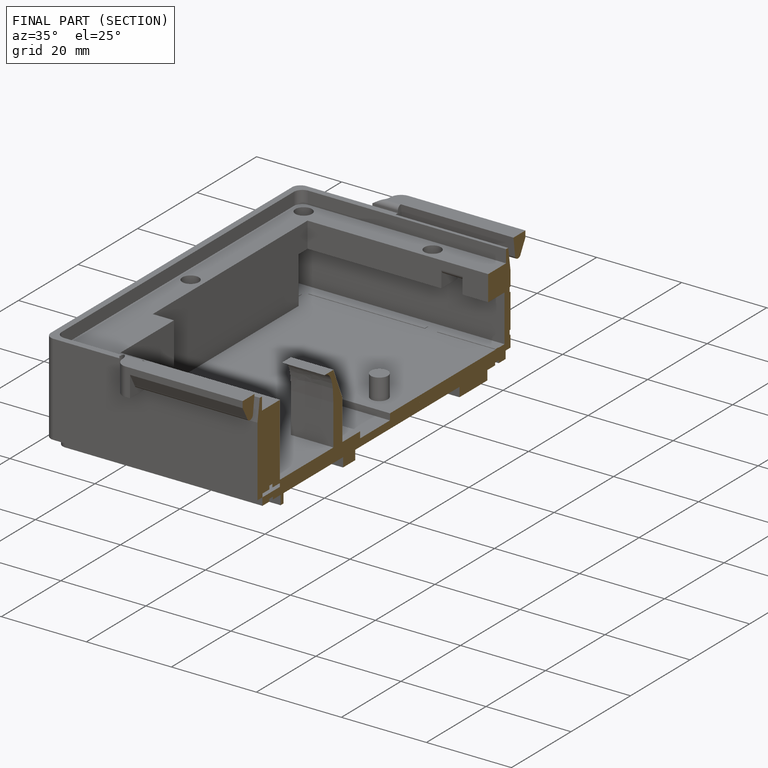
[diagram: finished part — half-section view (interior)]
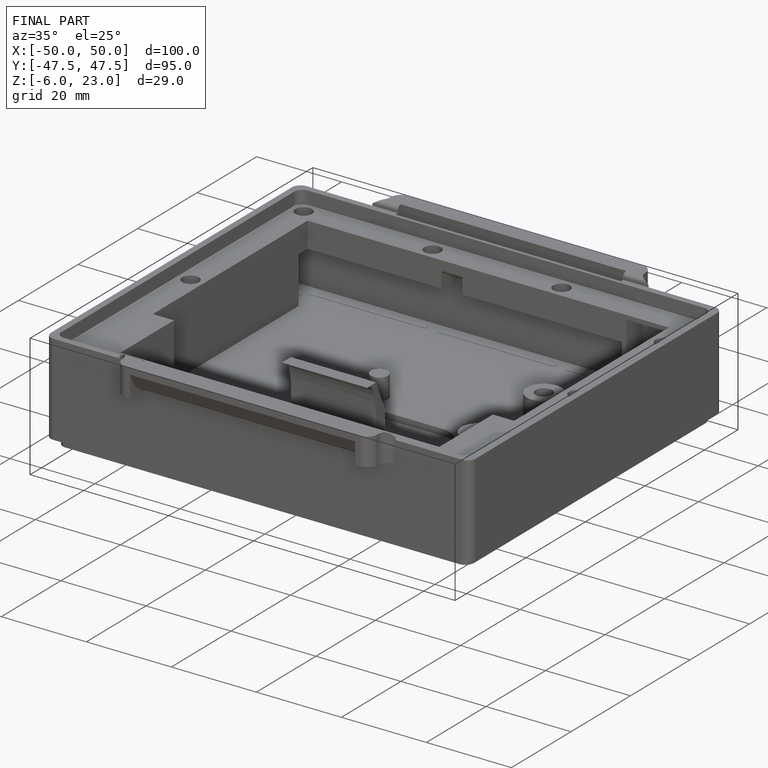
[diagram: finished part — iso view with bounding-box wireframe]
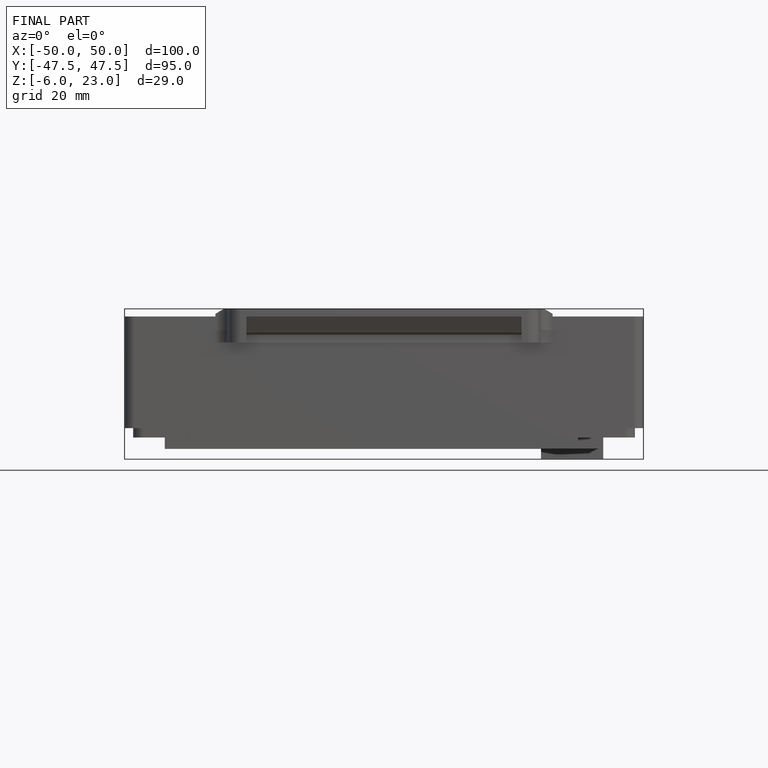
[diagram: finished part — front view with bounding-box wireframe]
